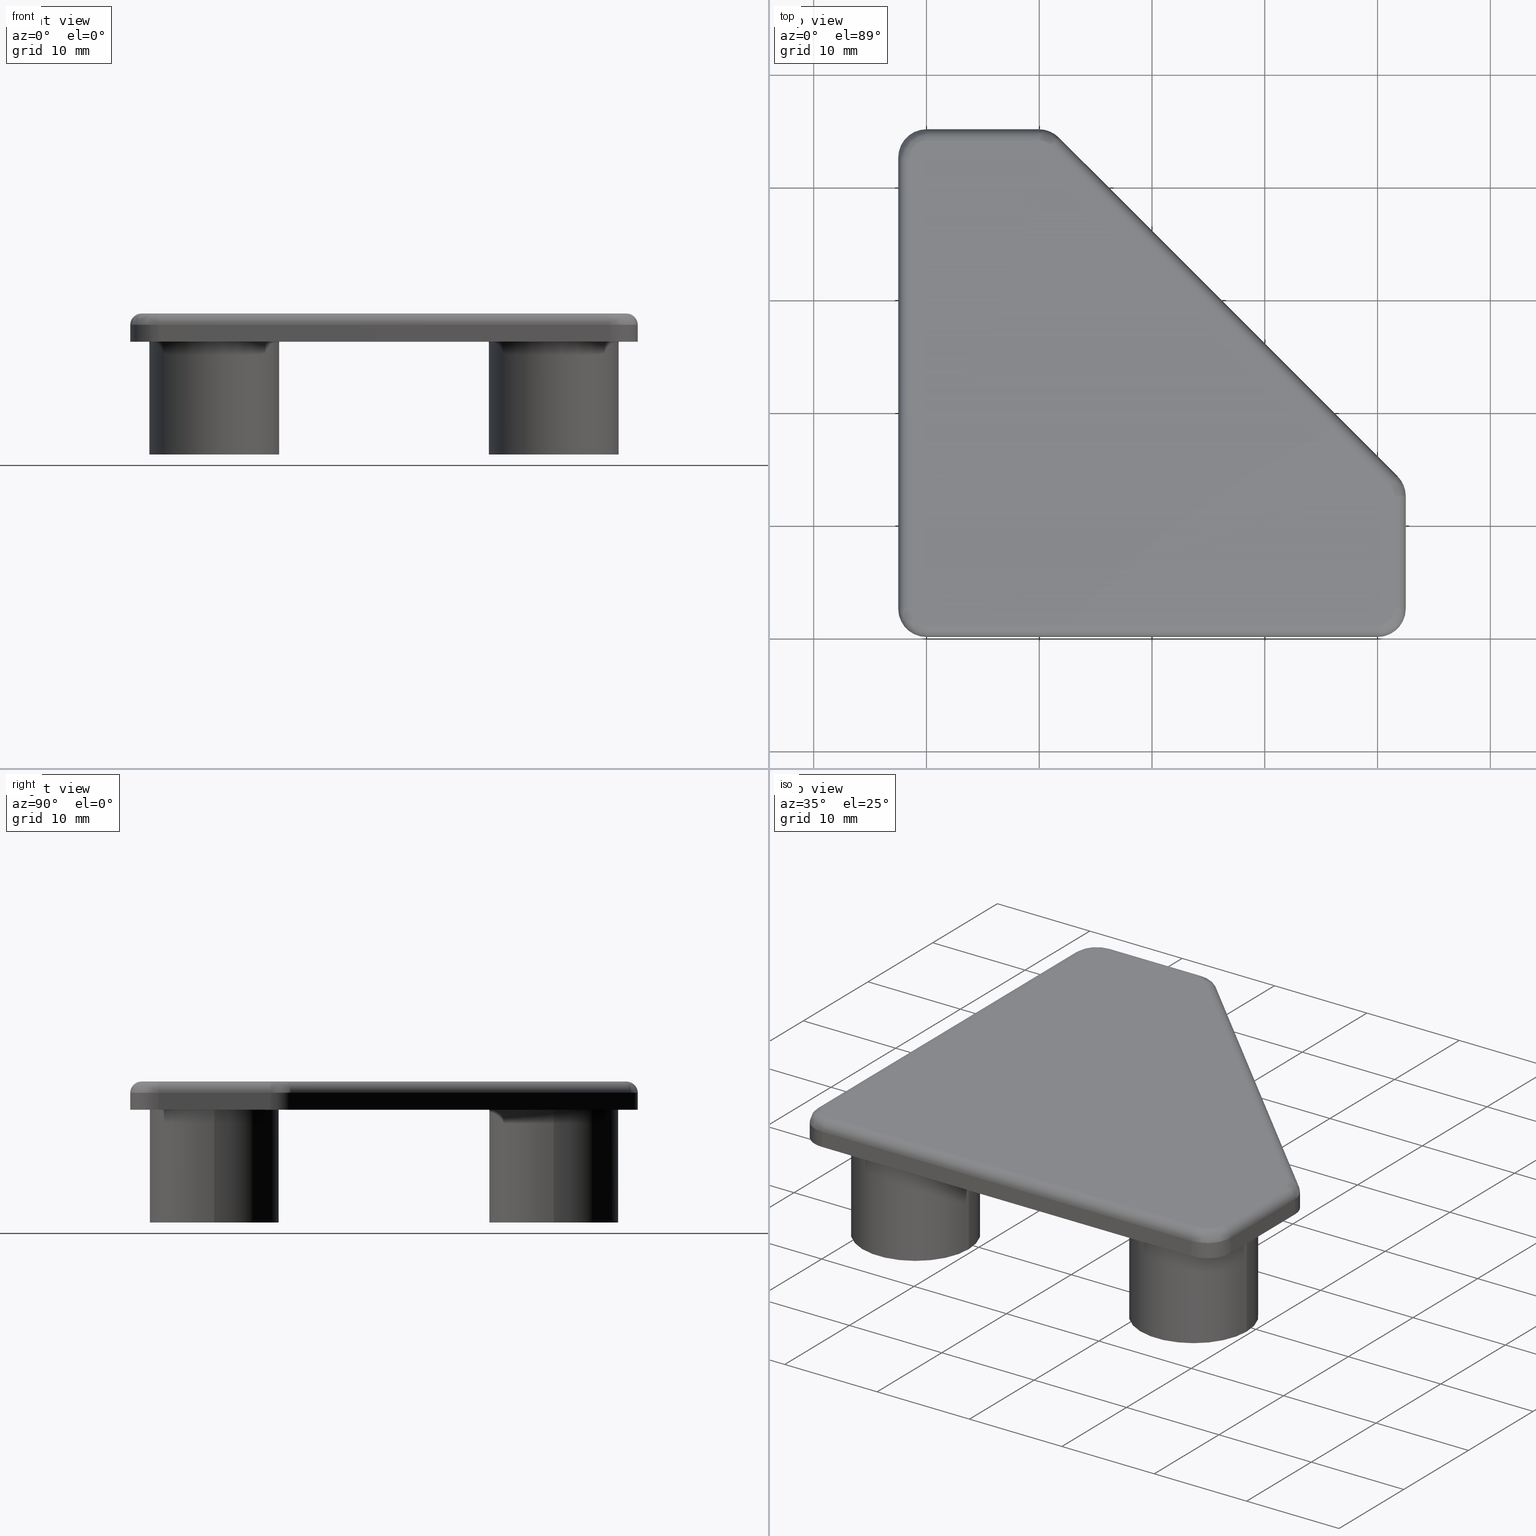
[diagram: canonical four-view strip — front | top / right | iso, engineering-drawing reading convention]
A machine part, canonical four-view strip (front | top / right | iso — engineering-drawing reading convention). The complete STEP part file that produces these views, byte-faithful:
ISO-10303-21;
HEADER;
/****************************************************************
 * Generated by software with PDE/Lib inside                    *
 * PDElib Version v4.4, created Mon 02/23/2004                  *
 * International Technegroup Inc. (www.iti-oh.com)              *
 ****************************************************************/
FILE_DESCRIPTION(('STEP AP203'),'2;1');
FILE_NAME('18.055.00.stp','2011-03-21T16:00:16',(''),(''),'2009.3.110','THINKDESIGN','');
FILE_SCHEMA(('CONFIG_CONTROL_DESIGN'));
ENDSEC;
DATA;
#2=CARTESIAN_POINT('',(-26.999976921299130,-4.499999774508175,0.0));
#3=DIRECTION('',(0.0,0.0,1.0));
#4=DIRECTION('',(1.0,0.0,0.0));
#5=AXIS2_PLACEMENT_3D('',#2,#3,#4);
#6=PLANE('',#5);
#7=CARTESIAN_POINT('',(-19.999976890545359,0.000000499999874,0.0));
#8=VERTEX_POINT('',#7);
#9=CARTESIAN_POINT('',(19.999976703044741,0.000000499999827,0.0));
#10=VERTEX_POINT('',#9);
#11=CARTESIAN_POINT('',(-19.999976890545359,0.000000499999874,0.0));
#12=DIRECTION('',(1.0,0.0,0.0));
#13=VECTOR('',#12,39.999953593590099);
#14=LINE('',#11,#13);
#15=EDGE_CURVE('',#8,#10,#14,.T.);
#16=ORIENTED_EDGE('',*,*,#15,.F.);
#17=CARTESIAN_POINT('',(-22.499976796785536,2.500000406240051,0.0));
#18=VERTEX_POINT('',#17);
#19=CARTESIAN_POINT('',(-19.999976890545359,2.500000406240051,0.0));
#20=DIRECTION('',(0.0,0.0,1.0));
#21=DIRECTION('',(1.224647E-016,-1.0,0.0));
#22=AXIS2_PLACEMENT_3D('',#19,#20,#21);
#23=CIRCLE('',#22,2.499999906240177);
#24=EDGE_CURVE('',#18,#8,#23,.T.);
#25=ORIENTED_EDGE('',*,*,#24,.F.);
#26=CARTESIAN_POINT('',(-22.499976796785500,42.499955999830036,0.0));
#27=VERTEX_POINT('',#26);
#28=CARTESIAN_POINT('',(-22.499976796785500,42.499955999830028,0.0));
#29=DIRECTION('',(0.0,-1.0,0.0));
#30=VECTOR('',#29,39.999955593589981);
#31=LINE('',#28,#30);
#32=EDGE_CURVE('',#27,#18,#31,.T.);
#33=ORIENTED_EDGE('',*,*,#32,.F.);
#34=CARTESIAN_POINT('',(-19.999976796795497,44.999955999820038,0.0));
#35=VERTEX_POINT('',#34);
#36=CARTESIAN_POINT('',(-19.999976796795497,42.499955999830036,0.0));
#37=DIRECTION('',(0.0,0.0,1.0));
#38=DIRECTION('',(1.0,0.0,0.0));
#39=AXIS2_PLACEMENT_3D('',#36,#37,#38);
#40=CIRCLE('',#39,2.499999999990003);
#41=EDGE_CURVE('',#35,#27,#40,.T.);
#42=ORIENTED_EDGE('',*,*,#41,.F.);
#43=CARTESIAN_POINT('',(-10.035555796835363,44.999955999820031,0.0));
#44=VERTEX_POINT('',#43);
#45=CARTESIAN_POINT('',(-10.035555796835363,44.999955999820031,0.0));
#46=DIRECTION('',(-1.0,0.0,0.0));
#47=VECTOR('',#46,9.964420999960135);
#48=LINE('',#45,#47);
#49=EDGE_CURVE('',#44,#35,#48,.T.);
#50=ORIENTED_EDGE('',*,*,#49,.F.);
#51=CARTESIAN_POINT('',(-8.267790390397970,44.267723593379706,0.0));
#52=VERTEX_POINT('',#51);
#53=CARTESIAN_POINT('',(-10.035555796835297,42.499958186942386,0.0));
#54=DIRECTION('',(0.0,0.0,1.0));
#55=DIRECTION('',(-2.629010E-014,1.0,0.0));
#56=AXIS2_PLACEMENT_3D('',#53,#54,#55);
#57=CIRCLE('',#56,2.499997812877652);
#58=EDGE_CURVE('',#52,#44,#57,.T.);
#59=ORIENTED_EDGE('',*,*,#58,.F.);
#60=CARTESIAN_POINT('',(21.767744203037456,14.232188999942801,0.0));
#61=VERTEX_POINT('',#60);
#62=CARTESIAN_POINT('',(21.767744203037459,14.232188999942803,0.0));
#63=DIRECTION('',(-0.707106781186530,0.707106781186565,0.0));
#64=VECTOR('',#63,42.476660375163696);
#65=LINE('',#62,#64);
#66=EDGE_CURVE('',#61,#52,#65,.T.);
#67=ORIENTED_EDGE('',*,*,#66,.F.);
#68=CARTESIAN_POINT('',(22.499977203035488,12.464422160532866,0.0));
#69=VERTEX_POINT('',#68);
#70=CARTESIAN_POINT('',(19.999977363626801,12.464422160532148,0.0));
#71=DIRECTION('',(0.0,0.0,1.0));
#72=DIRECTION('',(1.0,2.870593E-013,0.0));
#73=AXIS2_PLACEMENT_3D('',#70,#71,#72);
#74=CIRCLE('',#73,2.499999839408687);
#75=EDGE_CURVE('',#69,#61,#74,.T.);
#76=ORIENTED_EDGE('',*,*,#75,.F.);
#77=CARTESIAN_POINT('',(22.499977203034771,2.500000999989878,0.0));
#78=VERTEX_POINT('',#77);
#79=CARTESIAN_POINT('',(22.499977203034771,2.500000999989878,0.0));
#80=DIRECTION('',(0.0,1.0,0.0));
#81=VECTOR('',#80,9.964421160542988);
#82=LINE('',#79,#81);
#83=EDGE_CURVE('',#78,#69,#82,.T.);
#84=ORIENTED_EDGE('',*,*,#83,.F.);
#85=CARTESIAN_POINT('',(19.999976703044741,2.500000999989856,0.0));
#86=DIRECTION('',(0.0,0.0,1.0));
#87=DIRECTION('',(1.0,8.348875E-015,0.0));
#88=AXIS2_PLACEMENT_3D('',#85,#86,#87);
#89=CIRCLE('',#88,2.500000499990030);
#90=EDGE_CURVE('',#10,#78,#89,.T.);
#91=ORIENTED_EDGE('',*,*,#90,.F.);
#92=EDGE_LOOP('',(#16,#25,#33,#42,#50,#59,#67,#76,#84,#91));
#93=FACE_OUTER_BOUND('',#92,.T.);
#94=CARTESIAN_POINT('',(-20.799977796792124,7.449955999970369,0.0));
#95=VERTEX_POINT('',#94);
#96=CARTESIAN_POINT('',(-9.299977796838125,7.449955999970369,0.0));
#97=VERTEX_POINT('',#96);
#98=CARTESIAN_POINT('',(-15.049977796815124,7.449955999970369,0.0));
#99=DIRECTION('',(0.0,0.0,-1.0));
#100=DIRECTION('',(1.0,0.0,0.0));
#101=AXIS2_PLACEMENT_3D('',#98,#99,#100);
#102=CIRCLE('',#101,5.749999999977001);
#103=EDGE_CURVE('',#95,#97,#102,.T.);
#104=ORIENTED_EDGE('',*,*,#103,.F.);
#105=CARTESIAN_POINT('',(-15.049977796815124,7.449955999970369,0.0));
#106=DIRECTION('',(0.0,0.0,-1.0));
#107=DIRECTION('',(1.0,0.0,0.0));
#108=AXIS2_PLACEMENT_3D('',#105,#106,#107);
#109=CIRCLE('',#108,5.749999999977001);
#110=EDGE_CURVE('',#97,#95,#109,.T.);
#111=ORIENTED_EDGE('',*,*,#110,.F.);
#112=EDGE_LOOP('',(#104,#111));
#113=FACE_BOUND('',#112,.T.);
#114=CARTESIAN_POINT('',(9.300023203087616,7.449955999970369,0.0));
#115=VERTEX_POINT('',#114);
#116=CARTESIAN_POINT('',(20.800023203041615,7.449955999970369,0.0));
#117=VERTEX_POINT('',#116);
#118=CARTESIAN_POINT('',(15.050023203064615,7.449955999970369,0.0));
#119=DIRECTION('',(0.0,0.0,-1.0));
#120=DIRECTION('',(1.0,0.0,0.0));
#121=AXIS2_PLACEMENT_3D('',#118,#119,#120);
#122=CIRCLE('',#121,5.749999999977000);
#123=EDGE_CURVE('',#115,#117,#122,.T.);
#124=ORIENTED_EDGE('',*,*,#123,.F.);
#125=CARTESIAN_POINT('',(15.050023203064615,7.449955999970369,0.0));
#126=DIRECTION('',(0.0,0.0,-1.0));
#127=DIRECTION('',(1.0,0.0,0.0));
#128=AXIS2_PLACEMENT_3D('',#125,#126,#127);
#129=CIRCLE('',#128,5.749999999977000);
#130=EDGE_CURVE('',#117,#115,#129,.T.);
#131=ORIENTED_EDGE('',*,*,#130,.F.);
#132=EDGE_LOOP('',(#124,#131));
#133=FACE_BOUND('',#132,.T.);
#134=CARTESIAN_POINT('',(-20.799977796792124,37.549955999849772,0.0));
#135=VERTEX_POINT('',#134);
#136=CARTESIAN_POINT('',(-9.299977796838125,37.549955999849772,0.0));
#137=VERTEX_POINT('',#136);
#138=CARTESIAN_POINT('',(-15.049977796815124,37.549955999849772,0.0));
#139=DIRECTION('',(0.0,0.0,-1.0));
#140=DIRECTION('',(1.0,0.0,0.0));
#141=AXIS2_PLACEMENT_3D('',#138,#139,#140);
#142=CIRCLE('',#141,5.749999999977001);
#143=EDGE_CURVE('',#135,#137,#142,.T.);
#144=ORIENTED_EDGE('',*,*,#143,.F.);
#145=CARTESIAN_POINT('',(-15.049977796815124,37.549955999849772,0.0));
#146=DIRECTION('',(0.0,0.0,-1.0));
#147=DIRECTION('',(1.0,0.0,0.0));
#148=AXIS2_PLACEMENT_3D('',#145,#146,#147);
#149=CIRCLE('',#148,5.749999999977001);
#150=EDGE_CURVE('',#137,#135,#149,.T.);
#151=ORIENTED_EDGE('',*,*,#150,.F.);
#152=EDGE_LOOP('',(#144,#151));
#153=FACE_BOUND('',#152,.T.);
#154=ADVANCED_FACE('',(#93,#113,#133,#153),#6,.F.);
#155=CARTESIAN_POINT('',(-26.999976921299130,-4.499999774508175,0.0));
#156=DIRECTION('',(0.0,0.0,1.0));
#157=DIRECTION('',(1.0,0.0,0.0));
#158=AXIS2_PLACEMENT_3D('',#155,#156,#157);
#159=PLANE('',#158);
#160=CARTESIAN_POINT('',(-20.049977796795126,37.549955999849772,0.0));
#161=VERTEX_POINT('',#160);
#162=CARTESIAN_POINT('',(-10.049977796835122,37.549955999849772,0.0));
#163=VERTEX_POINT('',#162);
#164=CARTESIAN_POINT('',(-15.049977796815124,37.549955999849772,0.0));
#165=DIRECTION('',(0.0,0.0,1.0));
#166=DIRECTION('',(1.0,0.0,0.0));
#167=AXIS2_PLACEMENT_3D('',#164,#165,#166);
#168=CIRCLE('',#167,4.999999999980001);
#169=EDGE_CURVE('',#161,#163,#168,.T.);
#170=ORIENTED_EDGE('',*,*,#169,.F.);
#171=CARTESIAN_POINT('',(-15.049977796815124,37.549955999849772,0.0));
#172=DIRECTION('',(0.0,0.0,1.0));
#173=DIRECTION('',(1.0,0.0,0.0));
#174=AXIS2_PLACEMENT_3D('',#171,#172,#173);
#175=CIRCLE('',#174,4.999999999980001);
#176=EDGE_CURVE('',#163,#161,#175,.T.);
#177=ORIENTED_EDGE('',*,*,#176,.F.);
#178=EDGE_LOOP('',(#170,#177));
#179=FACE_OUTER_BOUND('',#178,.T.);
#180=ADVANCED_FACE('',(#179),#159,.F.);
#181=CARTESIAN_POINT('',(-26.999976921299130,-4.499999774508175,0.0));
#182=DIRECTION('',(0.0,0.0,1.0));
#183=DIRECTION('',(1.0,0.0,0.0));
#184=AXIS2_PLACEMENT_3D('',#181,#182,#183);
#185=PLANE('',#184);
#186=CARTESIAN_POINT('',(10.050023203084613,7.449955999970369,0.0));
#187=VERTEX_POINT('',#186);
#188=CARTESIAN_POINT('',(20.050023203044621,7.449955999970370,0.0));
#189=VERTEX_POINT('',#188);
#190=CARTESIAN_POINT('',(15.050023203064615,7.449955999970369,0.0));
#191=DIRECTION('',(0.0,0.0,1.0));
#192=DIRECTION('',(1.0,0.0,0.0));
#193=AXIS2_PLACEMENT_3D('',#190,#191,#192);
#194=CIRCLE('',#193,4.999999999980002);
#195=EDGE_CURVE('',#187,#189,#194,.T.);
#196=ORIENTED_EDGE('',*,*,#195,.F.);
#197=CARTESIAN_POINT('',(15.050023203064615,7.449955999970369,0.0));
#198=DIRECTION('',(0.0,0.0,1.0));
#199=DIRECTION('',(1.0,0.0,0.0));
#200=AXIS2_PLACEMENT_3D('',#197,#198,#199);
#201=CIRCLE('',#200,4.999999999980002);
#202=EDGE_CURVE('',#189,#187,#201,.T.);
#203=ORIENTED_EDGE('',*,*,#202,.F.);
#204=EDGE_LOOP('',(#196,#203));
#205=FACE_OUTER_BOUND('',#204,.T.);
#206=ADVANCED_FACE('',(#205),#185,.F.);
#207=CARTESIAN_POINT('',(-26.999976921299130,-4.499999774508175,0.0));
#208=DIRECTION('',(0.0,0.0,1.0));
#209=DIRECTION('',(1.0,0.0,0.0));
#210=AXIS2_PLACEMENT_3D('',#207,#208,#209);
#211=PLANE('',#210);
#212=CARTESIAN_POINT('',(-20.049977796795126,7.449955999970369,0.0));
#213=VERTEX_POINT('',#212);
#214=CARTESIAN_POINT('',(-10.049977796835122,7.449955999970370,0.0));
#215=VERTEX_POINT('',#214);
#216=CARTESIAN_POINT('',(-15.049977796815124,7.449955999970369,0.0));
#217=DIRECTION('',(0.0,0.0,1.0));
#218=DIRECTION('',(1.0,0.0,0.0));
#219=AXIS2_PLACEMENT_3D('',#216,#217,#218);
#220=CIRCLE('',#219,4.999999999980001);
#221=EDGE_CURVE('',#213,#215,#220,.T.);
#222=ORIENTED_EDGE('',*,*,#221,.F.);
#223=CARTESIAN_POINT('',(-15.049977796815124,7.449955999970369,0.0));
#224=DIRECTION('',(0.0,0.0,1.0));
#225=DIRECTION('',(1.0,0.0,0.0));
#226=AXIS2_PLACEMENT_3D('',#223,#224,#225);
#227=CIRCLE('',#226,4.999999999980001);
#228=EDGE_CURVE('',#215,#213,#227,.T.);
#229=ORIENTED_EDGE('',*,*,#228,.F.);
#230=EDGE_LOOP('',(#222,#229));
#231=FACE_OUTER_BOUND('',#230,.T.);
#232=ADVANCED_FACE('',(#231),#211,.F.);
#233=CARTESIAN_POINT('',(-26.999976921299130,-4.499999774508175,2.499999999989996));
#234=DIRECTION('',(0.0,0.0,1.0));
#235=DIRECTION('',(1.0,0.0,0.0));
#236=AXIS2_PLACEMENT_3D('',#233,#234,#235);
#237=PLANE('',#236);
#238=CARTESIAN_POINT('',(21.499977203035488,12.464422160532582,2.499999999989996));
#239=VERTEX_POINT('',#238);
#240=CARTESIAN_POINT('',(21.060637421851421,13.525082218756763,2.499999999989996));
#241=VERTEX_POINT('',#240);
#242=CARTESIAN_POINT('',(19.999977363626801,12.464422160532150,2.499999999989996));
#243=DIRECTION('',(0.0,0.0,1.0));
#244=DIRECTION('',(1.0,2.870593E-013,0.0));
#245=AXIS2_PLACEMENT_3D('',#242,#243,#244);
#246=CIRCLE('',#245,1.499999839408687);
#247=EDGE_CURVE('',#239,#241,#246,.T.);
#248=ORIENTED_EDGE('',*,*,#247,.T.);
#249=CARTESIAN_POINT('',(-8.974897171584519,43.560616812193160,2.499999999989996));
#250=VERTEX_POINT('',#249);
#251=CARTESIAN_POINT('',(21.060637421850888,13.525082218756269,2.499999999989996));
#252=DIRECTION('',(-0.707106781186530,0.707106781186565,0.0));
#253=VECTOR('',#252,42.476660375163696);
#254=LINE('',#251,#253);
#255=EDGE_CURVE('',#241,#250,#254,.T.);
#256=ORIENTED_EDGE('',*,*,#255,.T.);
#257=CARTESIAN_POINT('',(-10.035555796835363,43.999955999820031,2.499999999989996));
#258=VERTEX_POINT('',#257);
#259=CARTESIAN_POINT('',(-10.035555796835299,42.499958186942386,2.499999999989996));
#260=DIRECTION('',(0.0,0.0,1.0));
#261=DIRECTION('',(-2.629010E-014,1.0,0.0));
#262=AXIS2_PLACEMENT_3D('',#259,#260,#261);
#263=CIRCLE('',#262,1.499997812877652);
#264=EDGE_CURVE('',#250,#258,#263,.T.);
#265=ORIENTED_EDGE('',*,*,#264,.T.);
#266=CARTESIAN_POINT('',(-19.999976796795497,43.999955999820038,2.499999999989996));
#267=VERTEX_POINT('',#266);
#268=CARTESIAN_POINT('',(-10.035555796835363,43.999955999820031,2.499999999989996));
#269=DIRECTION('',(-1.0,0.0,0.0));
#270=VECTOR('',#269,9.964420999960138);
#271=LINE('',#268,#270);
#272=EDGE_CURVE('',#258,#267,#271,.T.);
#273=ORIENTED_EDGE('',*,*,#272,.T.);
#274=CARTESIAN_POINT('',(-21.499976796785500,42.499955999830036,2.499999999989996));
#275=VERTEX_POINT('',#274);
#276=CARTESIAN_POINT('',(-19.999976796795497,42.499955999830036,2.499999999989996));
#277=DIRECTION('',(0.0,0.0,1.0));
#278=DIRECTION('',(1.0,0.0,0.0));
#279=AXIS2_PLACEMENT_3D('',#276,#277,#278);
#280=CIRCLE('',#279,1.499999999990003);
#281=EDGE_CURVE('',#267,#275,#280,.T.);
#282=ORIENTED_EDGE('',*,*,#281,.T.);
#283=CARTESIAN_POINT('',(-21.499976796785536,2.500000406240051,2.499999999989996));
#284=VERTEX_POINT('',#283);
#285=CARTESIAN_POINT('',(-21.499976796785500,42.499955999830036,2.499999999989996));
#286=DIRECTION('',(0.0,-1.0,0.0));
#287=VECTOR('',#286,39.999955593589981);
#288=LINE('',#285,#287);
#289=EDGE_CURVE('',#275,#284,#288,.T.);
#290=ORIENTED_EDGE('',*,*,#289,.T.);
#291=CARTESIAN_POINT('',(-19.999976890545359,1.000000499999873,2.499999999989996));
#292=VERTEX_POINT('',#291);
#293=CARTESIAN_POINT('',(-19.999976890545362,2.500000406240051,2.499999999989996));
#294=DIRECTION('',(0.0,0.0,1.0));
#295=DIRECTION('',(1.224647E-016,-1.0,0.0));
#296=AXIS2_PLACEMENT_3D('',#293,#294,#295);
#297=CIRCLE('',#296,1.499999906240177);
#298=EDGE_CURVE('',#284,#292,#297,.T.);
#299=ORIENTED_EDGE('',*,*,#298,.T.);
#300=CARTESIAN_POINT('',(19.999976703044741,1.000000499999827,2.499999999989996));
#301=VERTEX_POINT('',#300);
#302=CARTESIAN_POINT('',(-19.999976890545359,1.000000499999873,2.499999999989996));
#303=DIRECTION('',(1.0,0.0,0.0));
#304=VECTOR('',#303,39.999953593590099);
#305=LINE('',#302,#304);
#306=EDGE_CURVE('',#292,#301,#305,.T.);
#307=ORIENTED_EDGE('',*,*,#306,.T.);
#308=CARTESIAN_POINT('',(21.499977203034771,2.500000999989950,2.499999999989996));
#309=VERTEX_POINT('',#308);
#310=CARTESIAN_POINT('',(19.999976703044741,2.500000999989857,2.499999999989996));
#311=DIRECTION('',(0.0,0.0,1.0));
#312=DIRECTION('',(1.0,8.348875E-015,0.0));
#313=AXIS2_PLACEMENT_3D('',#310,#311,#312);
#314=CIRCLE('',#313,1.500000499990030);
#315=EDGE_CURVE('',#301,#309,#314,.T.);
#316=ORIENTED_EDGE('',*,*,#315,.T.);
#317=CARTESIAN_POINT('',(21.499977203034771,2.500000999989950,2.499999999989996));
#318=DIRECTION('',(0.0,1.0,0.0));
#319=VECTOR('',#318,9.964421160542990);
#320=LINE('',#317,#319);
#321=EDGE_CURVE('',#309,#239,#320,.T.);
#322=ORIENTED_EDGE('',*,*,#321,.T.);
#323=EDGE_LOOP('',(#248,#256,#265,#273,#282,#290,#299,#307,#316,#322));
#324=FACE_OUTER_BOUND('',#323,.T.);
#325=ADVANCED_FACE('',(#324),#237,.T.);
#326=CARTESIAN_POINT('',(21.767744203037456,14.232188999942801,0.0));
#327=DIRECTION('',(0.707106781186565,0.707106781186530,0.0));
#328=DIRECTION('',(-0.707106781186530,0.707106781186565,0.0));
#329=AXIS2_PLACEMENT_3D('',#326,#327,#328);
#330=PLANE('',#329);
#331=ORIENTED_EDGE('',*,*,#66,.T.);
#332=CARTESIAN_POINT('',(-8.267790390397970,44.267723593379706,1.499999999989996));
#333=VERTEX_POINT('',#332);
#334=CARTESIAN_POINT('',(-8.267790390397970,44.267723593379706,0.0));
#335=DIRECTION('',(0.0,0.0,1.0));
#336=VECTOR('',#335,1.499999999989996);
#337=LINE('',#334,#336);
#338=EDGE_CURVE('',#52,#333,#337,.T.);
#339=ORIENTED_EDGE('',*,*,#338,.T.);
#340=CARTESIAN_POINT('',(21.767744203037967,14.232188999943309,1.499999999989996));
#341=VERTEX_POINT('',#340);
#342=CARTESIAN_POINT('',(21.767744203037456,14.232188999942801,1.499999999989996));
#343=DIRECTION('',(-0.707106781186530,0.707106781186565,0.0));
#344=VECTOR('',#343,42.476660375163696);
#345=LINE('',#342,#344);
#346=EDGE_CURVE('',#341,#333,#345,.T.);
#347=ORIENTED_EDGE('',*,*,#346,.F.);
#348=CARTESIAN_POINT('',(21.767744203037456,14.232188999942801,0.0));
#349=DIRECTION('',(0.0,0.0,1.0));
#350=VECTOR('',#349,1.499999999989996);
#351=LINE('',#348,#350);
#352=EDGE_CURVE('',#61,#341,#351,.T.);
#353=ORIENTED_EDGE('',*,*,#352,.F.);
#354=EDGE_LOOP('',(#331,#339,#347,#353));
#355=FACE_OUTER_BOUND('',#354,.T.);
#356=ADVANCED_FACE('',(#355),#330,.T.);
#357=CARTESIAN_POINT('',(-10.035555796835297,42.499958186942386,0.0));
#358=DIRECTION('',(0.0,0.0,1.0));
#359=DIRECTION('',(0.707106781186548,0.707106781186547,0.0));
#360=AXIS2_PLACEMENT_3D('',#357,#358,#359);
#361=CYLINDRICAL_SURFACE('',#360,2.499997812877652);
#362=ORIENTED_EDGE('',*,*,#58,.T.);
#363=CARTESIAN_POINT('',(-10.035555796835363,44.999955999820031,1.499999999989996));
#364=VERTEX_POINT('',#363);
#365=CARTESIAN_POINT('',(-10.035555796835363,44.999955999820031,0.0));
#366=DIRECTION('',(0.0,0.0,1.0));
#367=VECTOR('',#366,1.499999999989996);
#368=LINE('',#365,#367);
#369=EDGE_CURVE('',#44,#364,#368,.T.);
#370=ORIENTED_EDGE('',*,*,#369,.T.);
#371=CARTESIAN_POINT('',(-10.035555796835297,42.499958186942386,1.499999999989996));
#372=DIRECTION('',(0.0,0.0,1.0));
#373=DIRECTION('',(-2.629010E-014,1.0,0.0));
#374=AXIS2_PLACEMENT_3D('',#371,#372,#373);
#375=CIRCLE('',#374,2.499997812877652);
#376=EDGE_CURVE('',#333,#364,#375,.T.);
#377=ORIENTED_EDGE('',*,*,#376,.F.);
#378=ORIENTED_EDGE('',*,*,#338,.F.);
#379=EDGE_LOOP('',(#362,#370,#377,#378));
#380=FACE_OUTER_BOUND('',#379,.T.);
#381=ADVANCED_FACE('',(#380),#361,.T.);
#382=CARTESIAN_POINT('',(-10.035555796835363,44.999955999820031,0.0));
#383=DIRECTION('',(0.0,1.0,0.0));
#384=DIRECTION('',(-1.0,0.0,0.0));
#385=AXIS2_PLACEMENT_3D('',#382,#383,#384);
#386=PLANE('',#385);
#387=ORIENTED_EDGE('',*,*,#49,.T.);
#388=CARTESIAN_POINT('',(-19.999976796795497,44.999955999820038,1.499999999989996));
#389=VERTEX_POINT('',#388);
#390=CARTESIAN_POINT('',(-19.999976796795497,44.999955999820038,0.0));
#391=DIRECTION('',(0.0,0.0,1.0));
#392=VECTOR('',#391,1.499999999989996);
#393=LINE('',#390,#392);
#394=EDGE_CURVE('',#35,#389,#393,.T.);
#395=ORIENTED_EDGE('',*,*,#394,.T.);
#396=CARTESIAN_POINT('',(-10.035555796835363,44.999955999820031,1.499999999989996));
#397=DIRECTION('',(-1.0,0.0,0.0));
#398=VECTOR('',#397,9.964420999960135);
#399=LINE('',#396,#398);
#400=EDGE_CURVE('',#364,#389,#399,.T.);
#401=ORIENTED_EDGE('',*,*,#400,.F.);
#402=ORIENTED_EDGE('',*,*,#369,.F.);
#403=EDGE_LOOP('',(#387,#395,#401,#402));
#404=FACE_OUTER_BOUND('',#403,.T.);
#405=ADVANCED_FACE('',(#404),#386,.T.);
#406=CARTESIAN_POINT('',(-19.999976796795497,42.499955999830036,0.0));
#407=DIRECTION('',(0.0,0.0,1.0));
#408=DIRECTION('',(1.0,0.0,0.0));
#409=AXIS2_PLACEMENT_3D('',#406,#407,#408);
#410=CYLINDRICAL_SURFACE('',#409,2.499999999990003);
#411=ORIENTED_EDGE('',*,*,#41,.T.);
#412=CARTESIAN_POINT('',(-22.499976796785500,42.499955999830036,1.499999999989996));
#413=VERTEX_POINT('',#412);
#414=CARTESIAN_POINT('',(-22.499976796785500,42.499955999830036,0.0));
#415=DIRECTION('',(0.0,0.0,1.0));
#416=VECTOR('',#415,1.499999999989996);
#417=LINE('',#414,#416);
#418=EDGE_CURVE('',#27,#413,#417,.T.);
#419=ORIENTED_EDGE('',*,*,#418,.T.);
#420=CARTESIAN_POINT('',(-19.999976796795497,42.499955999830036,1.499999999989996));
#421=DIRECTION('',(0.0,0.0,1.0));
#422=DIRECTION('',(1.0,0.0,0.0));
#423=AXIS2_PLACEMENT_3D('',#420,#421,#422);
#424=CIRCLE('',#423,2.499999999990003);
#425=EDGE_CURVE('',#389,#413,#424,.T.);
#426=ORIENTED_EDGE('',*,*,#425,.F.);
#427=ORIENTED_EDGE('',*,*,#394,.F.);
#428=EDGE_LOOP('',(#411,#419,#426,#427));
#429=FACE_OUTER_BOUND('',#428,.T.);
#430=ADVANCED_FACE('',(#429),#410,.T.);
#431=CARTESIAN_POINT('',(-22.499976796785500,42.499955999830036,0.0));
#432=DIRECTION('',(-1.0,0.0,0.0));
#433=DIRECTION('',(0.0,-1.0,0.0));
#434=AXIS2_PLACEMENT_3D('',#431,#432,#433);
#435=PLANE('',#434);
#436=ORIENTED_EDGE('',*,*,#32,.T.);
#437=CARTESIAN_POINT('',(-22.499976796785536,2.500000406240051,1.499999999989996));
#438=VERTEX_POINT('',#437);
#439=CARTESIAN_POINT('',(-22.499976796785536,2.500000406240051,0.0));
#440=DIRECTION('',(0.0,0.0,1.0));
#441=VECTOR('',#440,1.499999999989996);
#442=LINE('',#439,#441);
#443=EDGE_CURVE('',#18,#438,#442,.T.);
#444=ORIENTED_EDGE('',*,*,#443,.T.);
#445=CARTESIAN_POINT('',(-22.499976796785500,42.499955999830036,1.499999999989996));
#446=DIRECTION('',(0.0,-1.0,0.0));
#447=VECTOR('',#446,39.999955593589981);
#448=LINE('',#445,#447);
#449=EDGE_CURVE('',#413,#438,#448,.T.);
#450=ORIENTED_EDGE('',*,*,#449,.F.);
#451=ORIENTED_EDGE('',*,*,#418,.F.);
#452=EDGE_LOOP('',(#436,#444,#450,#451));
#453=FACE_OUTER_BOUND('',#452,.T.);
#454=ADVANCED_FACE('',(#453),#435,.T.);
#455=CARTESIAN_POINT('',(-19.999976890545359,2.500000406240051,0.0));
#456=DIRECTION('',(0.0,0.0,1.0));
#457=DIRECTION('',(-1.0,3.834759E-017,0.0));
#458=AXIS2_PLACEMENT_3D('',#455,#456,#457);
#459=CYLINDRICAL_SURFACE('',#458,2.499999906240177);
#460=ORIENTED_EDGE('',*,*,#24,.T.);
#461=CARTESIAN_POINT('',(-19.999976890545359,0.000000499999874,1.499999999989996));
#462=VERTEX_POINT('',#461);
#463=CARTESIAN_POINT('',(-19.999976890545359,0.000000499999874,0.0));
#464=DIRECTION('',(0.0,0.0,1.0));
#465=VECTOR('',#464,1.499999999989996);
#466=LINE('',#463,#465);
#467=EDGE_CURVE('',#8,#462,#466,.T.);
#468=ORIENTED_EDGE('',*,*,#467,.T.);
#469=CARTESIAN_POINT('',(-19.999976890545359,2.500000406240051,1.499999999989996));
#470=DIRECTION('',(0.0,0.0,1.0));
#471=DIRECTION('',(1.224647E-016,-1.0,0.0));
#472=AXIS2_PLACEMENT_3D('',#469,#470,#471);
#473=CIRCLE('',#472,2.499999906240177);
#474=EDGE_CURVE('',#438,#462,#473,.T.);
#475=ORIENTED_EDGE('',*,*,#474,.F.);
#476=ORIENTED_EDGE('',*,*,#443,.F.);
#477=EDGE_LOOP('',(#460,#468,#475,#476));
#478=FACE_OUTER_BOUND('',#477,.T.);
#479=ADVANCED_FACE('',(#478),#459,.T.);
#480=CARTESIAN_POINT('',(-19.999976890545359,0.000000499999874,0.0));
#481=DIRECTION('',(0.0,-1.0,0.0));
#482=DIRECTION('',(1.0,0.0,0.0));
#483=AXIS2_PLACEMENT_3D('',#480,#481,#482);
#484=PLANE('',#483);
#485=CARTESIAN_POINT('',(19.999976703044741,0.000000499999827,1.499999999989996));
#486=VERTEX_POINT('',#485);
#487=CARTESIAN_POINT('',(19.999976703044741,0.000000499999827,0.0));
#488=DIRECTION('',(0.0,0.0,1.0));
#489=VECTOR('',#488,1.499999999989996);
#490=LINE('',#487,#489);
#491=EDGE_CURVE('',#10,#486,#490,.T.);
#492=ORIENTED_EDGE('',*,*,#491,.T.);
#493=CARTESIAN_POINT('',(-19.999976890545359,0.000000499999874,1.499999999989996));
#494=DIRECTION('',(1.0,0.0,0.0));
#495=VECTOR('',#494,39.999953593590099);
#496=LINE('',#493,#495);
#497=EDGE_CURVE('',#462,#486,#496,.T.);
#498=ORIENTED_EDGE('',*,*,#497,.F.);
#499=ORIENTED_EDGE('',*,*,#467,.F.);
#500=ORIENTED_EDGE('',*,*,#15,.T.);
#501=EDGE_LOOP('',(#492,#498,#499,#500));
#502=FACE_OUTER_BOUND('',#501,.T.);
#503=ADVANCED_FACE('',(#502),#484,.T.);
#504=CARTESIAN_POINT('',(19.999976703044741,2.500000999989856,0.0));
#505=DIRECTION('',(0.0,0.0,1.0));
#506=DIRECTION('',(-2.758717E-017,-1.0,0.0));
#507=AXIS2_PLACEMENT_3D('',#504,#505,#506);
#508=CYLINDRICAL_SURFACE('',#507,2.500000499990030);
#509=ORIENTED_EDGE('',*,*,#90,.T.);
#510=CARTESIAN_POINT('',(22.499977203034771,2.500000999989878,1.499999999989996));
#511=VERTEX_POINT('',#510);
#512=CARTESIAN_POINT('',(22.499977203034771,2.500000999989878,0.0));
#513=DIRECTION('',(0.0,0.0,1.0));
#514=VECTOR('',#513,1.499999999989996);
#515=LINE('',#512,#514);
#516=EDGE_CURVE('',#78,#511,#515,.T.);
#517=ORIENTED_EDGE('',*,*,#516,.T.);
#518=CARTESIAN_POINT('',(19.999976703044741,2.500000999989856,1.499999999989996));
#519=DIRECTION('',(0.0,0.0,1.0));
#520=DIRECTION('',(1.0,8.348875E-015,0.0));
#521=AXIS2_PLACEMENT_3D('',#518,#519,#520);
#522=CIRCLE('',#521,2.500000499990030);
#523=EDGE_CURVE('',#486,#511,#522,.T.);
#524=ORIENTED_EDGE('',*,*,#523,.F.);
#525=ORIENTED_EDGE('',*,*,#491,.F.);
#526=EDGE_LOOP('',(#509,#517,#524,#525));
#527=FACE_OUTER_BOUND('',#526,.T.);
#528=ADVANCED_FACE('',(#527),#508,.T.);
#529=CARTESIAN_POINT('',(22.499977203034771,2.500000999989878,0.0));
#530=DIRECTION('',(1.0,0.0,0.0));
#531=DIRECTION('',(0.0,1.0,0.0));
#532=AXIS2_PLACEMENT_3D('',#529,#530,#531);
#533=PLANE('',#532);
#534=ORIENTED_EDGE('',*,*,#83,.T.);
#535=CARTESIAN_POINT('',(22.499977203035488,12.464422160532866,1.499999999989996));
#536=VERTEX_POINT('',#535);
#537=CARTESIAN_POINT('',(22.499977203035488,12.464422160532866,0.0));
#538=DIRECTION('',(0.0,0.0,1.0));
#539=VECTOR('',#538,1.499999999989996);
#540=LINE('',#537,#539);
#541=EDGE_CURVE('',#69,#536,#540,.T.);
#542=ORIENTED_EDGE('',*,*,#541,.T.);
#543=CARTESIAN_POINT('',(22.499977203034771,2.500000999989878,1.499999999989996));
#544=DIRECTION('',(0.0,1.0,0.0));
#545=VECTOR('',#544,9.964421160542988);
#546=LINE('',#543,#545);
#547=EDGE_CURVE('',#511,#536,#546,.T.);
#548=ORIENTED_EDGE('',*,*,#547,.F.);
#549=ORIENTED_EDGE('',*,*,#516,.F.);
#550=EDGE_LOOP('',(#534,#542,#548,#549));
#551=FACE_OUTER_BOUND('',#550,.T.);
#552=ADVANCED_FACE('',(#551),#533,.T.);
#553=CARTESIAN_POINT('',(19.999977363626801,12.464422160532148,0.0));
#554=DIRECTION('',(0.0,0.0,1.0));
#555=DIRECTION('',(1.0,2.870593E-013,0.0));
#556=AXIS2_PLACEMENT_3D('',#553,#554,#555);
#557=CYLINDRICAL_SURFACE('',#556,2.499999839408687);
#558=ORIENTED_EDGE('',*,*,#75,.T.);
#559=ORIENTED_EDGE('',*,*,#352,.T.);
#560=CARTESIAN_POINT('',(19.999977363626801,12.464422160532148,1.499999999989996));
#561=DIRECTION('',(0.0,0.0,1.0));
#562=DIRECTION('',(1.0,2.870593E-013,0.0));
#563=AXIS2_PLACEMENT_3D('',#560,#561,#562);
#564=CIRCLE('',#563,2.499999839408687);
#565=EDGE_CURVE('',#536,#341,#564,.T.);
#566=ORIENTED_EDGE('',*,*,#565,.F.);
#567=ORIENTED_EDGE('',*,*,#541,.F.);
#568=EDGE_LOOP('',(#558,#559,#566,#567));
#569=FACE_OUTER_BOUND('',#568,.T.);
#570=ADVANCED_FACE('',(#569),#557,.T.);
#571=CARTESIAN_POINT('',(22.499977203035488,12.464422160532866,1.499999999989996));
#572=CARTESIAN_POINT('',(22.499977203035488,12.464422160532866,1.630060214667415));
#573=CARTESIAN_POINT('',(22.447938426919713,12.464422160532854,1.893027817333271));
#574=CARTESIAN_POINT('',(22.225390114508425,12.464422160532786,2.225412911462942));
#575=CARTESIAN_POINT('',(21.893005020378766,12.464422160532692,2.447961223874217));
#576=CARTESIAN_POINT('',(21.630037417712909,12.464422160532619,2.499999999989996));
#577=CARTESIAN_POINT('',(21.499977203035488,12.464422160532582,2.499999999989996));
#578=CARTESIAN_POINT('',(22.499977203035446,12.627784050588273,1.499999999989996));
#579=CARTESIAN_POINT('',(22.499977203035446,12.627784050588273,1.630060214667414));
#580=CARTESIAN_POINT('',(22.447938426919663,12.624383589240848,1.893027817333271));
#581=CARTESIAN_POINT('',(22.225390114508386,12.609841223128972,2.225412911462942));
#582=CARTESIAN_POINT('',(21.893005020378734,12.588121598852378,2.447961223874217));
#583=CARTESIAN_POINT('',(21.630037417712867,12.570938043910559,2.499999999989996));
#584=CARTESIAN_POINT('',(21.499977203035463,12.562439290368305,2.499999999989996));
#585=CARTESIAN_POINT('',(22.467752836423848,12.955406654246167,1.499999999989996));
#586=CARTESIAN_POINT('',(22.467752836423848,12.955406654246167,1.630060214667414));
#587=CARTESIAN_POINT('',(22.416384826991006,12.945186560731777,1.893027817333270));
#588=CARTESIAN_POINT('',(22.196705106127155,12.901479449725725,2.225412911462941));
#589=CARTESIAN_POINT('',(21.868604371924505,12.836201074668736,2.447961223874215));
#590=CARTESIAN_POINT('',(21.609026355250499,12.784555865247992,2.499999999989995));
#591=CARTESIAN_POINT('',(21.480642583896504,12.759012844144905,2.499999999989996));
#592=CARTESIAN_POINT('',(22.324541710738394,13.427288239715120,1.499999999989995));
#593=CARTESIAN_POINT('',(22.324541710738394,13.427288239715120,1.630060214667414));
#594=CARTESIAN_POINT('',(22.276154714179757,13.407245689498037,1.893027817333270));
#595=CARTESIAN_POINT('',(22.069223551870788,13.321531995591970,2.225412911462940));
#596=CARTESIAN_POINT('',(21.760163316287759,13.193515054423219,2.447961223874215));
#597=CARTESIAN_POINT('',(21.515649255140040,13.092234014104871,2.499999999989995));
#598=CARTESIAN_POINT('',(21.394715912164983,13.042141783301464,2.499999999989996));
#599=CARTESIAN_POINT('',(22.092136599849670,13.862224466830764,1.499999999989996));
#600=CARTESIAN_POINT('',(22.092136599849670,13.862224466830764,1.630060214667415));
#601=CARTESIAN_POINT('',(22.048587234615276,13.833128496453089,1.893027817333272));
#602=CARTESIAN_POINT('',(21.862344619724844,13.708697070719523,2.225412911462944));
#603=CARTESIAN_POINT('',(21.584183583990278,13.522853598320083,2.447961223874218));
#604=CARTESIAN_POINT('',(21.364115530355967,13.375822900280081,2.499999999989996));
#605=CARTESIAN_POINT('',(21.255272851603301,13.303103508395331,2.499999999989996));
#606=CARTESIAN_POINT('',(21.883258503283592,14.116674699697677,1.499999999989996));
#607=CARTESIAN_POINT('',(21.883258503283592,14.116674699697679,1.630060214667414));
#608=CARTESIAN_POINT('',(21.844057042529563,14.082282217499486,1.893027817333271));
#609=CARTESIAN_POINT('',(21.676408615989768,13.935199802344007,2.225412911462942));
#610=CARTESIAN_POINT('',(21.426018768354602,13.715526141930319,2.447961223874217));
#611=CARTESIAN_POINT('',(21.227921985053019,13.541730575077127,2.499999999989996));
#612=CARTESIAN_POINT('',(21.129945999030689,13.455773641577471,2.499999999989996));
#613=CARTESIAN_POINT('',(21.767744203037964,14.232188999943311,1.499999999989996));
#614=CARTESIAN_POINT('',(21.767744203037964,14.232188999943311,1.630060214667414));
#615=CARTESIAN_POINT('',(21.730947231561846,14.195392028467200,1.893027817333271));
#616=CARTESIAN_POINT('',(21.573581810714209,14.038026607619553,2.225412911462942));
#617=CARTESIAN_POINT('',(21.338550056689790,13.802994853595141,2.447961223874216));
#618=CARTESIAN_POINT('',(21.152603881612400,13.617048678517744,2.499999999989996));
#619=CARTESIAN_POINT('',(21.060637421851418,13.525082218756763,2.499999999989996));
#620=B_SPLINE_SURFACE_WITH_KNOTS('',3,3,((#571,#578,#585,#592,#599,#606,#613),(#572,#579,#586,#593,#600,#607,#614),(#573,#580,#587,#594,#601,#608,#615),(#574,#581,#588,#595,#602,#609,#616),(#575,#582,#589,#596,#603,#610,#617),(#576,#583,#590,#597,#604,#611,#618),(#577,#584,#591,#598,#605,#612,#619)),.UNSPECIFIED.,.F.,.F.,.U.,(4,1,1,1,4),(4,1,1,1,4),(0.0,0.390180644032256,0.780361288064512,1.170541932096768,1.560722576129025),(0.0,0.412207905669849,0.824415811339697,1.236623717009546,1.648831622679396),.UNSPECIFIED.);
#621=ORIENTED_EDGE('',*,*,#565,.T.);
#622=CARTESIAN_POINT('',(21.060637421850892,13.525082218756271,1.499999999989996));
#623=DIRECTION('',(0.707106781186530,-0.707106781186565,0.0));
#624=DIRECTION('',(0.707106781186565,0.707106781186530,0.0));
#625=AXIS2_PLACEMENT_3D('',#622,#623,#624);
#626=CIRCLE('',#625,1.000000000000003);
#627=EDGE_CURVE('',#341,#241,#626,.T.);
#628=ORIENTED_EDGE('',*,*,#627,.T.);
#629=ORIENTED_EDGE('',*,*,#247,.F.);
#630=CARTESIAN_POINT('',(21.499977203035488,12.464422160532582,1.499999999989996));
#631=DIRECTION('',(2.859935E-013,-1.0,1.776357E-015));
#632=DIRECTION('',(1.0,2.859935E-013,0.0));
#633=AXIS2_PLACEMENT_3D('',#630,#631,#632);
#634=CIRCLE('',#633,1.0);
#635=EDGE_CURVE('',#536,#239,#634,.T.);
#636=ORIENTED_EDGE('',*,*,#635,.F.);
#637=EDGE_LOOP('',(#621,#628,#629,#636));
#638=FACE_OUTER_BOUND('',#637,.T.);
#639=ADVANCED_FACE('',(#638),#620,.F.);
#640=CARTESIAN_POINT('',(21.499977203034771,2.500000999989950,1.499999999989996));
#641=DIRECTION('',(-7.194245E-014,-1.0,0.0));
#642=DIRECTION('',(1.0,-7.194245E-014,0.0));
#643=AXIS2_PLACEMENT_3D('',#640,#641,#642);
#644=CYLINDRICAL_SURFACE('',#643,1.0);
#645=ORIENTED_EDGE('',*,*,#635,.T.);
#646=ORIENTED_EDGE('',*,*,#321,.F.);
#647=CARTESIAN_POINT('',(21.499977203034771,2.500000999989950,1.499999999989996));
#648=DIRECTION('',(-7.194245E-014,-1.0,0.0));
#649=DIRECTION('',(1.0,-7.194245E-014,0.0));
#650=AXIS2_PLACEMENT_3D('',#647,#648,#649);
#651=CIRCLE('',#650,1.0);
#652=EDGE_CURVE('',#511,#309,#651,.T.);
#653=ORIENTED_EDGE('',*,*,#652,.F.);
#654=ORIENTED_EDGE('',*,*,#547,.T.);
#655=EDGE_LOOP('',(#645,#646,#653,#654));
#656=FACE_OUTER_BOUND('',#655,.T.);
#657=ADVANCED_FACE('',(#656),#644,.T.);
#658=CARTESIAN_POINT('',(19.999976703044741,0.000000499999826,1.499999999989996));
#659=CARTESIAN_POINT('',(19.999976703044741,0.000000499999826,1.630060214667415));
#660=CARTESIAN_POINT('',(19.999976703044734,0.052039276115606,1.893027817333271));
#661=CARTESIAN_POINT('',(19.999976703044744,0.274587588526879,2.225412911462943));
#662=CARTESIAN_POINT('',(19.999976703044737,0.606972682656552,2.447961223874217));
#663=CARTESIAN_POINT('',(19.999976703044741,0.869940285322408,2.499999999989996));
#664=CARTESIAN_POINT('',(19.999976703044741,1.000000499999827,2.499999999989996));
#665=CARTESIAN_POINT('',(20.325127304767101,0.000000499999830,1.499999999989996));
#666=CARTESIAN_POINT('',(20.325127304767101,0.000000499999830,1.630060214667415));
#667=CARTESIAN_POINT('',(20.318359130373928,0.052039276115601,1.893027817333271));
#668=CARTESIAN_POINT('',(20.289414449085626,0.274587588526888,2.225412911462943));
#669=CARTESIAN_POINT('',(20.246184372387543,0.606972682656542,2.447961223874217));
#670=CARTESIAN_POINT('',(20.211982749531618,0.869940285322414,2.499999999989996));
#671=CARTESIAN_POINT('',(20.195067090089680,1.000000499999828,2.499999999989996));
#672=CARTESIAN_POINT('',(20.982546442912913,0.130097466308144,1.499999999989995));
#673=CARTESIAN_POINT('',(20.982546442912913,0.130097466308144,1.630060214667414));
#674=CARTESIAN_POINT('',(20.962093756318918,0.179428208204298,1.893027817333270));
#675=CARTESIAN_POINT('',(20.874626078838478,0.390395378811051,2.225412911462942));
#676=CARTESIAN_POINT('',(20.743989490775270,0.705483559443096,2.447961223874216));
#677=CARTESIAN_POINT('',(20.640635907867502,0.954766649908113,2.499999999989995));
#678=CARTESIAN_POINT('',(20.589518625569639,1.078058690192365,2.499999999989995));
#679=CARTESIAN_POINT('',(21.813509344426350,0.686468358608272,1.499999999989996));
#680=CARTESIAN_POINT('',(21.813509344426350,0.686468358608272,1.630060214667416));
#681=CARTESIAN_POINT('',(21.775759744334703,0.724217958699908,1.893027817333272));
#682=CARTESIAN_POINT('',(21.614320325085053,0.885657377949561,2.225412911462942));
#683=CARTESIAN_POINT('',(21.373203886222235,1.126773816812375,2.447961223874219));
#684=CARTESIAN_POINT('',(21.182443791949346,1.317533911085275,2.499999999989996));
#685=CARTESIAN_POINT('',(21.088096432953400,1.411881270081218,2.499999999989996));
#686=CARTESIAN_POINT('',(22.369880236726466,1.517431260121694,1.499999999989996));
#687=CARTESIAN_POINT('',(22.369880236726466,1.517431260121694,1.630060214667414));
#688=CARTESIAN_POINT('',(22.320549494830310,1.537883946715692,1.893027817333268));
#689=CARTESIAN_POINT('',(22.109582324223545,1.625351624196124,2.225412911462942));
#690=CARTESIAN_POINT('',(21.794494143591525,1.755988212259347,2.447961223874215));
#691=CARTESIAN_POINT('',(21.545211053126486,1.859341795167101,2.499999999989996));
#692=CARTESIAN_POINT('',(21.421919012842238,1.910459077464964,2.499999999989996));
#693=CARTESIAN_POINT('',(22.499977203034767,2.174850398267517,1.499999999989996));
#694=CARTESIAN_POINT('',(22.499977203034767,2.174850398267517,1.630060214667414));
#695=CARTESIAN_POINT('',(22.447938426918991,2.181618572660685,1.893027817333270));
#696=CARTESIAN_POINT('',(22.225390114507714,2.210563253948992,2.225412911462942));
#697=CARTESIAN_POINT('',(21.893005020378052,2.253793330647069,2.447961223874216));
#698=CARTESIAN_POINT('',(21.630037417712192,2.287994953502995,2.499999999989996));
#699=CARTESIAN_POINT('',(21.499977203034774,2.304910612944930,2.499999999989996));
#700=CARTESIAN_POINT('',(22.499977203034771,2.500000999989877,1.499999999989996));
#701=CARTESIAN_POINT('',(22.499977203034771,2.500000999989877,1.630060214667415));
#702=CARTESIAN_POINT('',(22.447938426918988,2.500000999989877,1.893027817333271));
#703=CARTESIAN_POINT('',(22.225390114507714,2.500000999989876,2.225412911462942));
#704=CARTESIAN_POINT('',(21.893005020378048,2.500000999989873,2.447961223874217));
#705=CARTESIAN_POINT('',(21.630037417712192,2.500000999989871,2.499999999989996));
#706=CARTESIAN_POINT('',(21.499977203034771,2.500000999989870,2.499999999989996));
#707=B_SPLINE_SURFACE_WITH_KNOTS('',3,3,((#658,#665,#672,#679,#686,#693,#700),(#659,#666,#673,#680,#687,#694,#701),(#660,#667,#674,#681,#688,#695,#702),(#661,#668,#675,#682,#689,#696,#703),(#662,#669,#676,#683,#690,#697,#704),(#663,#670,#677,#684,#691,#698,#705),(#664,#671,#678,#685,#692,#699,#706)),.UNSPECIFIED.,.F.,.F.,.U.,(4,1,1,1,4),(4,1,1,1,4),(0.0,0.390180644032257,0.780361288064513,1.170541932096769,1.560722576129026),(0.0,0.820446281618692,1.640892563237385,2.461338844856078,3.281785126474771),.UNSPECIFIED.);
#708=ORIENTED_EDGE('',*,*,#652,.T.);
#709=ORIENTED_EDGE('',*,*,#315,.F.);
#710=CARTESIAN_POINT('',(19.999976703044741,1.000000499999827,1.499999999989996));
#711=DIRECTION('',(-1.0,0.0,0.0));
#712=DIRECTION('',(0.0,-1.0,0.0));
#713=AXIS2_PLACEMENT_3D('',#710,#711,#712);
#714=CIRCLE('',#713,1.0);
#715=EDGE_CURVE('',#486,#301,#714,.T.);
#716=ORIENTED_EDGE('',*,*,#715,.F.);
#717=ORIENTED_EDGE('',*,*,#523,.T.);
#718=EDGE_LOOP('',(#708,#709,#716,#717));
#719=FACE_OUTER_BOUND('',#718,.T.);
#720=ADVANCED_FACE('',(#719),#707,.F.);
#721=CARTESIAN_POINT('',(-19.999976890545359,1.000000499999873,1.499999999989996));
#722=DIRECTION('',(-1.0,0.0,0.0));
#723=DIRECTION('',(0.0,-1.0,0.0));
#724=AXIS2_PLACEMENT_3D('',#721,#722,#723);
#725=CYLINDRICAL_SURFACE('',#724,1.000000000000000);
#726=ORIENTED_EDGE('',*,*,#715,.T.);
#727=ORIENTED_EDGE('',*,*,#306,.F.);
#728=CARTESIAN_POINT('',(-19.999976890545359,1.000000499999873,1.499999999989996));
#729=DIRECTION('',(-1.0,0.0,0.0));
#730=DIRECTION('',(0.0,-1.0,0.0));
#731=AXIS2_PLACEMENT_3D('',#728,#729,#730);
#732=CIRCLE('',#731,1.000000000000000);
#733=EDGE_CURVE('',#462,#292,#732,.T.);
#734=ORIENTED_EDGE('',*,*,#733,.F.);
#735=ORIENTED_EDGE('',*,*,#497,.T.);
#736=EDGE_LOOP('',(#726,#727,#734,#735));
#737=FACE_OUTER_BOUND('',#736,.T.);
#738=ADVANCED_FACE('',(#737),#725,.T.);
#739=CARTESIAN_POINT('',(-22.499976796785536,2.500000406240051,1.499999999989996));
#740=CARTESIAN_POINT('',(-22.499976796785536,2.500000406240051,1.630060214667414));
#741=CARTESIAN_POINT('',(-22.447938020669756,2.500000406240051,1.893027817333270));
#742=CARTESIAN_POINT('',(-22.225389708258486,2.500000406240051,2.225412911462942));
#743=CARTESIAN_POINT('',(-21.893004614128817,2.500000406240051,2.447961223874215));
#744=CARTESIAN_POINT('',(-21.630037011462957,2.500000406240051,2.499999999989995));
#745=CARTESIAN_POINT('',(-21.499976796785539,2.500000406240051,2.499999999989996));
#746=CARTESIAN_POINT('',(-22.499976796785528,2.174849881740926,1.499999999989996));
#747=CARTESIAN_POINT('',(-22.499976796785525,2.174849881740926,1.630060214667414));
#748=CARTESIAN_POINT('',(-22.447938020669767,2.181618056134095,1.893027817333269));
#749=CARTESIAN_POINT('',(-22.225389708258479,2.210562737422402,2.225412911462942));
#750=CARTESIAN_POINT('',(-21.893004614128809,2.253792814120482,2.447961223874215));
#751=CARTESIAN_POINT('',(-21.630037011462964,2.287994436976409,2.499999999989995));
#752=CARTESIAN_POINT('',(-21.499976796785528,2.304910096418345,2.499999999989996));
#753=CARTESIAN_POINT('',(-22.369879861375232,1.517430899732081,1.499999999989995));
#754=CARTESIAN_POINT('',(-22.369879861375232,1.517430899732082,1.630060214667414));
#755=CARTESIAN_POINT('',(-22.320549119479072,1.537883586326082,1.893027817333268));
#756=CARTESIAN_POINT('',(-22.109581948872325,1.625351263806514,2.225412911462941));
#757=CARTESIAN_POINT('',(-21.794493768240308,1.755987851869738,2.447961223874214));
#758=CARTESIAN_POINT('',(-21.545210677775266,1.859341434777492,2.499999999989994));
#759=CARTESIAN_POINT('',(-21.421918637491018,1.910458717075356,2.499999999989995));
#760=CARTESIAN_POINT('',(-21.813509101213150,0.686468195572269,1.499999999989996));
#761=CARTESIAN_POINT('',(-21.813509101213150,0.686468195572269,1.630060214667415));
#762=CARTESIAN_POINT('',(-21.775759501121513,0.724217795663904,1.893027817333273));
#763=CARTESIAN_POINT('',(-21.614320081871853,0.885657214913559,2.225412911462944));
#764=CARTESIAN_POINT('',(-21.373203643009049,1.126773653776373,2.447961223874218));
#765=CARTESIAN_POINT('',(-21.182443548736146,1.317533748049273,2.499999999989996));
#766=CARTESIAN_POINT('',(-21.088096189740199,1.411881107045215,2.499999999989996));
#767=CARTESIAN_POINT('',(-20.982546397053326,0.130097435410173,1.499999999989996));
#768=CARTESIAN_POINT('',(-20.982546397053326,0.130097435410173,1.630060214667414));
#769=CARTESIAN_POINT('',(-20.962093710459328,0.179428177306329,1.893027817333269));
#770=CARTESIAN_POINT('',(-20.874626032978910,0.390395347913087,2.225412911462943));
#771=CARTESIAN_POINT('',(-20.743989444915677,0.705483528545122,2.447961223874215));
#772=CARTESIAN_POINT('',(-20.640635862007919,0.954766619010147,2.499999999989995));
#773=CARTESIAN_POINT('',(-20.589518579710059,1.078058659294400,2.499999999989996));
#774=CARTESIAN_POINT('',(-20.325127415044481,0.000000499999880,1.499999999989996));
#775=CARTESIAN_POINT('',(-20.325127415044481,0.000000499999880,1.630060214667414));
#776=CARTESIAN_POINT('',(-20.318359240651311,0.052039276115647,1.893027817333270));
#777=CARTESIAN_POINT('',(-20.289414559363014,0.274587588526925,2.225412911462943));
#778=CARTESIAN_POINT('',(-20.246184482664933,0.606972682656598,2.447961223874216));
#779=CARTESIAN_POINT('',(-20.211982859809005,0.869940285322453,2.499999999989995));
#780=CARTESIAN_POINT('',(-20.195067200367067,1.000000499999868,2.499999999989996));
#781=CARTESIAN_POINT('',(-19.999976890545359,0.000000499999874,1.499999999989996));
#782=CARTESIAN_POINT('',(-19.999976890545359,0.000000499999874,1.630060214667414));
#783=CARTESIAN_POINT('',(-19.999976890545355,0.052039276115653,1.893027817333270));
#784=CARTESIAN_POINT('',(-19.999976890545366,0.274587588526927,2.225412911462943));
#785=CARTESIAN_POINT('',(-19.999976890545366,0.606972682656599,2.447961223874217));
#786=CARTESIAN_POINT('',(-19.999976890545362,0.869940285322455,2.499999999989996));
#787=CARTESIAN_POINT('',(-19.999976890545362,1.000000499999874,2.499999999989996));
#788=B_SPLINE_SURFACE_WITH_KNOTS('',3,3,((#739,#746,#753,#760,#767,#774,#781),(#740,#747,#754,#761,#768,#775,#782),(#741,#748,#755,#762,#769,#776,#783),(#742,#749,#756,#763,#770,#777,#784),(#743,#750,#757,#764,#771,#778,#785),(#744,#751,#758,#765,#772,#779,#786),(#745,#752,#759,#766,#773,#780,#787)),.UNSPECIFIED.,.F.,.F.,.U.,(4,1,1,1,4),(4,1,1,1,4),(0.0,0.390180644032256,0.780361288064512,1.170541932096768,1.560722576129024),(0.0,0.820446049948988,1.640892099897976,2.461338149846965,3.281784199795953),.UNSPECIFIED.);
#789=ORIENTED_EDGE('',*,*,#733,.T.);
#790=ORIENTED_EDGE('',*,*,#298,.F.);
#791=CARTESIAN_POINT('',(-21.499976796785536,2.500000406240051,1.499999999989996));
#792=DIRECTION('',(0.0,1.0,0.0));
#793=DIRECTION('',(-1.0,0.0,0.0));
#794=AXIS2_PLACEMENT_3D('',#791,#792,#793);
#795=CIRCLE('',#794,1.0);
#796=EDGE_CURVE('',#438,#284,#795,.T.);
#797=ORIENTED_EDGE('',*,*,#796,.F.);
#798=ORIENTED_EDGE('',*,*,#474,.T.);
#799=EDGE_LOOP('',(#789,#790,#797,#798));
#800=FACE_OUTER_BOUND('',#799,.T.);
#801=ADVANCED_FACE('',(#800),#788,.F.);
#802=CARTESIAN_POINT('',(-21.499976796785500,42.499955999830036,1.499999999989996));
#803=DIRECTION('',(0.0,1.0,0.0));
#804=DIRECTION('',(-1.0,0.0,0.0));
#805=AXIS2_PLACEMENT_3D('',#802,#803,#804);
#806=CYLINDRICAL_SURFACE('',#805,1.0);
#807=ORIENTED_EDGE('',*,*,#796,.T.);
#808=ORIENTED_EDGE('',*,*,#289,.F.);
#809=CARTESIAN_POINT('',(-21.499976796785500,42.499955999830036,1.499999999989996));
#810=DIRECTION('',(0.0,1.0,0.0));
#811=DIRECTION('',(-1.0,0.0,0.0));
#812=AXIS2_PLACEMENT_3D('',#809,#810,#811);
#813=CIRCLE('',#812,1.0);
#814=EDGE_CURVE('',#413,#275,#813,.T.);
#815=ORIENTED_EDGE('',*,*,#814,.F.);
#816=ORIENTED_EDGE('',*,*,#449,.T.);
#817=EDGE_LOOP('',(#807,#808,#815,#816));
#818=FACE_OUTER_BOUND('',#817,.T.);
#819=ADVANCED_FACE('',(#818),#806,.T.);
#820=CARTESIAN_POINT('',(-19.999976796795497,44.999955999820038,1.499999999989996));
#821=CARTESIAN_POINT('',(-19.999976796795497,44.999955999820038,1.630060214667415));
#822=CARTESIAN_POINT('',(-19.999976796795497,44.947917223704252,1.893027817333272));
#823=CARTESIAN_POINT('',(-19.999976796795504,44.725368911292996,2.225412911462943));
#824=CARTESIAN_POINT('',(-19.999976796795501,44.392983817163326,2.447961223874218));
#825=CARTESIAN_POINT('',(-19.999976796795497,44.130016214497459,2.499999999989996));
#826=CARTESIAN_POINT('',(-19.999976796795497,43.999955999820038,2.499999999989996));
#827=CARTESIAN_POINT('',(-20.325127333487742,44.999955999820017,1.499999999989996));
#828=CARTESIAN_POINT('',(-20.325127333487742,44.999955999820017,1.630060214667414));
#829=CARTESIAN_POINT('',(-20.318359159094577,44.947917223704231,1.893027817333272));
#830=CARTESIAN_POINT('',(-20.289414477806275,44.725368911293018,2.225412911462943));
#831=CARTESIAN_POINT('',(-20.246184401108192,44.392983817163298,2.447961223874218));
#832=CARTESIAN_POINT('',(-20.211982778252260,44.130016214497431,2.499999999989996));
#833=CARTESIAN_POINT('',(-20.195067118810325,43.999955999820081,2.499999999989996));
#834=CARTESIAN_POINT('',(-20.982546340149760,44.869859059531137,1.499999999989996));
#835=CARTESIAN_POINT('',(-20.982546340149760,44.869859059531137,1.630060214667414));
#836=CARTESIAN_POINT('',(-20.962093653555769,44.820528317634981,1.893027817333273));
#837=CARTESIAN_POINT('',(-20.874625976075333,44.609561147028217,2.225412911462943));
#838=CARTESIAN_POINT('',(-20.743989388012103,44.294472966396206,2.447961223874218));
#839=CARTESIAN_POINT('',(-20.640635805104338,44.045189875931150,2.499999999989996));
#840=CARTESIAN_POINT('',(-20.589518522806483,43.921897835646881,2.499999999989996));
#841=CARTESIAN_POINT('',(-21.813509075470606,44.313488278505133,1.499999999989995));
#842=CARTESIAN_POINT('',(-21.813509075470606,44.313488278505133,1.630060214667414));
#843=CARTESIAN_POINT('',(-21.775759475378962,44.275738678413497,1.893027817333269));
#844=CARTESIAN_POINT('',(-21.614320056129333,44.114299259163886,2.225412911462942));
#845=CARTESIAN_POINT('',(-21.373203617266505,43.873182820301054,2.447961223874215));
#846=CARTESIAN_POINT('',(-21.182443522993616,43.682422726028136,2.499999999989996));
#847=CARTESIAN_POINT('',(-21.088096163997662,43.588075367032204,2.499999999989996));
#848=CARTESIAN_POINT('',(-22.369879856496581,43.482525543184295,1.499999999989996));
#849=CARTESIAN_POINT('',(-22.369879856496581,43.482525543184295,1.630060214667414));
#850=CARTESIAN_POINT('',(-22.320549114600428,43.462072856590311,1.893027817333272));
#851=CARTESIAN_POINT('',(-22.109581943993675,43.374605179109878,2.225412911462943));
#852=CARTESIAN_POINT('',(-21.794493763361608,43.243968591046610,2.447961223874218));
#853=CARTESIAN_POINT('',(-21.545210672896587,43.140615008138887,2.499999999989996));
#854=CARTESIAN_POINT('',(-21.421918632612361,43.089497725841028,2.499999999989996));
#855=CARTESIAN_POINT('',(-22.499976796785493,42.825106536522284,1.499999999989996));
#856=CARTESIAN_POINT('',(-22.499976796785493,42.825106536522284,1.630060214667415));
#857=CARTESIAN_POINT('',(-22.447938020669714,42.818338362129118,1.893027817333272));
#858=CARTESIAN_POINT('',(-22.225389708258454,42.789393680840824,2.225412911462943));
#859=CARTESIAN_POINT('',(-21.893004614128827,42.746163604142737,2.447961223874218));
#860=CARTESIAN_POINT('',(-21.630037011462949,42.711961981286798,2.499999999989996));
#861=CARTESIAN_POINT('',(-21.499976796785486,42.695046321844863,2.499999999989996));
#862=CARTESIAN_POINT('',(-22.499976796785500,42.499955999830036,1.499999999989996));
#863=CARTESIAN_POINT('',(-22.499976796785500,42.499955999830036,1.630060214667415));
#864=CARTESIAN_POINT('',(-22.447938020669721,42.499955999830036,1.893027817333272));
#865=CARTESIAN_POINT('',(-22.225389708258447,42.499955999830050,2.225412911462943));
#866=CARTESIAN_POINT('',(-21.893004614128785,42.499955999830050,2.447961223874218));
#867=CARTESIAN_POINT('',(-21.630037011462921,42.499955999830036,2.499999999989996));
#868=CARTESIAN_POINT('',(-21.499976796785500,42.499955999830036,2.499999999989996));
#869=B_SPLINE_SURFACE_WITH_KNOTS('',3,3,((#820,#827,#834,#841,#848,#855,#862),(#821,#828,#835,#842,#849,#856,#863),(#822,#829,#836,#843,#850,#857,#864),(#823,#830,#837,#844,#851,#858,#865),(#824,#831,#838,#845,#852,#859,#866),(#825,#832,#839,#846,#853,#860,#867),(#826,#833,#840,#847,#854,#861,#868)),.UNSPECIFIED.,.F.,.F.,.U.,(4,1,1,1,4),(4,1,1,1,4),(0.0,0.390180644032256,0.780361288064513,1.170541932096769,1.560722576129027),(0.0,0.820446086528355,1.640892173056713,2.461338259585068,3.281784346113425),.UNSPECIFIED.);
#870=ORIENTED_EDGE('',*,*,#814,.T.);
#871=ORIENTED_EDGE('',*,*,#281,.F.);
#872=CARTESIAN_POINT('',(-19.999976796795501,43.999955999820038,1.499999999989996));
#873=DIRECTION('',(1.0,2.718346E-016,4.440892E-016));
#874=DIRECTION('',(-2.718346E-016,1.0,0.0));
#875=AXIS2_PLACEMENT_3D('',#872,#873,#874);
#876=CIRCLE('',#875,1.0);
#877=EDGE_CURVE('',#389,#267,#876,.T.);
#878=ORIENTED_EDGE('',*,*,#877,.F.);
#879=ORIENTED_EDGE('',*,*,#425,.T.);
#880=EDGE_LOOP('',(#870,#871,#878,#879));
#881=FACE_OUTER_BOUND('',#880,.T.);
#882=ADVANCED_FACE('',(#881),#869,.F.);
#883=CARTESIAN_POINT('',(-10.035555796835363,43.999955999820031,1.499999999989996));
#884=DIRECTION('',(1.0,0.0,0.0));
#885=DIRECTION('',(0.0,1.0,0.0));
#886=AXIS2_PLACEMENT_3D('',#883,#884,#885);
#887=CYLINDRICAL_SURFACE('',#886,1.0);
#888=ORIENTED_EDGE('',*,*,#877,.T.);
#889=ORIENTED_EDGE('',*,*,#272,.F.);
#890=CARTESIAN_POINT('',(-10.035555796835363,43.999955999820031,1.499999999989996));
#891=DIRECTION('',(1.0,0.0,0.0));
#892=DIRECTION('',(0.0,1.0,0.0));
#893=AXIS2_PLACEMENT_3D('',#890,#891,#892);
#894=CIRCLE('',#893,1.0);
#895=EDGE_CURVE('',#364,#258,#894,.T.);
#896=ORIENTED_EDGE('',*,*,#895,.F.);
#897=ORIENTED_EDGE('',*,*,#400,.T.);
#898=EDGE_LOOP('',(#888,#889,#896,#897));
#899=FACE_OUTER_BOUND('',#898,.T.);
#900=ADVANCED_FACE('',(#899),#887,.T.);
#901=CARTESIAN_POINT('',(-8.267790390397970,44.267723593379706,1.499999999989996));
#902=CARTESIAN_POINT('',(-8.267790390397970,44.267723593379706,1.630060214667414));
#903=CARTESIAN_POINT('',(-8.304587361874086,44.230926621903606,1.893027817333270));
#904=CARTESIAN_POINT('',(-8.461952782721719,44.073561201055945,2.225412911462943));
#905=CARTESIAN_POINT('',(-8.696984536746141,43.838529447031533,2.447961223874216));
#906=CARTESIAN_POINT('',(-8.882930711823539,43.652583271954143,2.499999999989996));
#907=CARTESIAN_POINT('',(-8.974897171584519,43.560616812193160,2.499999999989996));
#908=CARTESIAN_POINT('',(-8.383304597006340,44.383237799988024,1.499999999989996));
#909=CARTESIAN_POINT('',(-8.383304597006356,44.383237799988009,1.630060214667414));
#910=CARTESIAN_POINT('',(-8.417697079204533,44.344036339234009,1.893027817333270));
#911=CARTESIAN_POINT('',(-8.564779494359993,44.176387912694203,2.225412911462943));
#912=CARTESIAN_POINT('',(-8.784453154773669,43.925998065059048,2.447961223874216));
#913=CARTESIAN_POINT('',(-8.958248721626871,43.727901281757440,2.499999999989996));
#914=CARTESIAN_POINT('',(-9.044205655126508,43.629925295735127,2.499999999989996));
#915=CARTESIAN_POINT('',(-8.637754623612803,44.592115727235033,1.499999999989996));
#916=CARTESIAN_POINT('',(-8.637754623612798,44.592115727235033,1.630060214667415));
#917=CARTESIAN_POINT('',(-8.666850593990468,44.548566362000621,1.893027817333270));
#918=CARTESIAN_POINT('',(-8.791282019724036,44.362323747110189,2.225412911462942));
#919=CARTESIAN_POINT('',(-8.977125492123447,44.084162711375598,2.447961223874216));
#920=CARTESIAN_POINT('',(-9.124156190163431,43.864094657741283,2.499999999989996));
#921=CARTESIAN_POINT('',(-9.196875582048181,43.755251978988611,2.499999999989996));
#922=CARTESIAN_POINT('',(-9.072690498163931,44.824520649733302,1.499999999989996));
#923=CARTESIAN_POINT('',(-9.072690498163933,44.824520649733302,1.630060214667416));
#924=CARTESIAN_POINT('',(-9.092733048381021,44.776133653174682,1.893027817333273));
#925=CARTESIAN_POINT('',(-9.178446742287026,44.569202490865678,2.225412911462945));
#926=CARTESIAN_POINT('',(-9.306463683455750,44.260142255282631,2.447961223874219));
#927=CARTESIAN_POINT('',(-9.407744723774062,44.015628194134905,2.499999999989997));
#928=CARTESIAN_POINT('',(-9.457836954577450,43.894694851159834,2.499999999989996));
#929=CARTESIAN_POINT('',(-9.544571701120002,44.967731659330013,1.499999999989995));
#930=CARTESIAN_POINT('',(-9.544571701120002,44.967731659330013,1.630060214667414));
#931=CARTESIAN_POINT('',(-9.554791794634383,44.916363649897143,1.893027817333269));
#932=CARTESIAN_POINT('',(-9.598498905640380,44.696683929033270,2.225412911462941));
#933=CARTESIAN_POINT('',(-9.663777280697296,44.368583194830606,2.447961223874215));
#934=CARTESIAN_POINT('',(-9.715422490117980,44.109005178156593,2.499999999989995));
#935=CARTESIAN_POINT('',(-9.740965511221038,43.980621406802577,2.499999999989995));
#936=CARTESIAN_POINT('',(-9.872194039203075,44.999955999820031,1.499999999989996));
#937=CARTESIAN_POINT('',(-9.872194039203075,44.999955999820031,1.630060214667414));
#938=CARTESIAN_POINT('',(-9.875594500550486,44.947917223704266,1.893027817333270));
#939=CARTESIAN_POINT('',(-9.890136866662294,44.725368911292968,2.225412911462942));
#940=CARTESIAN_POINT('',(-9.911856490938799,44.392983817163390,2.447961223874216));
#941=CARTESIAN_POINT('',(-9.929040045880544,44.130016214497459,2.499999999989996));
#942=CARTESIAN_POINT('',(-9.937538799422761,43.999955999820081,2.499999999989996));
#943=CARTESIAN_POINT('',(-10.035555796835363,44.999955999820038,1.499999999989996));
#944=CARTESIAN_POINT('',(-10.035555796835363,44.999955999820038,1.630060214667415));
#945=CARTESIAN_POINT('',(-10.035555796835361,44.947917223704273,1.893027817333271));
#946=CARTESIAN_POINT('',(-10.035555796835355,44.725368911292975,2.225412911462942));
#947=CARTESIAN_POINT('',(-10.035555796835350,44.392983817163312,2.447961223874216));
#948=CARTESIAN_POINT('',(-10.035555796835343,44.130016214497459,2.499999999989996));
#949=CARTESIAN_POINT('',(-10.035555796835339,43.999955999820038,2.499999999989996));
#950=B_SPLINE_SURFACE_WITH_KNOTS('',3,3,((#901,#908,#915,#922,#929,#936,#943),(#902,#909,#916,#923,#930,#937,#944),(#903,#910,#917,#924,#931,#938,#945),(#904,#911,#918,#925,#932,#939,#946),(#905,#912,#919,#926,#933,#940,#947),(#906,#913,#920,#927,#934,#941,#948),(#907,#914,#921,#928,#935,#942,#949)),.UNSPECIFIED.,.F.,.F.,.U.,(4,1,1,1,4),(4,1,1,1,4),(0.0,0.390180644032257,0.780361288064513,1.170541932096770,1.560722576129026),(0.0,0.412207508400462,0.824415016800924,1.236622525201384,1.648830033601844),.UNSPECIFIED.);
#951=ORIENTED_EDGE('',*,*,#895,.T.);
#952=ORIENTED_EDGE('',*,*,#264,.F.);
#953=CARTESIAN_POINT('',(-8.974897171584519,43.560616812193160,1.499999999989996));
#954=DIRECTION('',(0.707106781186548,-0.707106781186548,2.553513E-015));
#955=DIRECTION('',(0.707106781186548,0.707106781186548,0.0));
#956=AXIS2_PLACEMENT_3D('',#953,#954,#955);
#957=CIRCLE('',#956,0.999999999999998);
#958=EDGE_CURVE('',#333,#250,#957,.T.);
#959=ORIENTED_EDGE('',*,*,#958,.F.);
#960=ORIENTED_EDGE('',*,*,#376,.T.);
#961=EDGE_LOOP('',(#951,#952,#959,#960));
#962=FACE_OUTER_BOUND('',#961,.T.);
#963=ADVANCED_FACE('',(#962),#950,.F.);
#964=CARTESIAN_POINT('',(21.060637421850888,13.525082218756269,1.499999999989996));
#965=DIRECTION('',(0.707106781186530,-0.707106781186565,0.0));
#966=DIRECTION('',(0.707106781186565,0.707106781186530,0.0));
#967=AXIS2_PLACEMENT_3D('',#964,#965,#966);
#968=CYLINDRICAL_SURFACE('',#967,1.000000000000003);
#969=ORIENTED_EDGE('',*,*,#346,.T.);
#970=ORIENTED_EDGE('',*,*,#958,.T.);
#971=ORIENTED_EDGE('',*,*,#255,.F.);
#972=ORIENTED_EDGE('',*,*,#627,.F.);
#973=EDGE_LOOP('',(#969,#970,#971,#972));
#974=FACE_OUTER_BOUND('',#973,.T.);
#975=ADVANCED_FACE('',(#974),#968,.T.);
#976=CARTESIAN_POINT('',(-15.049977796815124,7.449955999970369,0.0));
#977=DIRECTION('',(0.0,0.0,-1.0));
#978=DIRECTION('',(1.0,0.0,0.0));
#979=AXIS2_PLACEMENT_3D('',#976,#977,#978);
#980=CYLINDRICAL_SURFACE('',#979,5.749999999977001);
#981=CARTESIAN_POINT('',(-20.799977796792124,7.449955999970369,-9.999999999959982));
#982=VERTEX_POINT('',#981);
#983=CARTESIAN_POINT('',(-9.299977796838125,7.449955999970369,-9.999999999959982));
#984=VERTEX_POINT('',#983);
#985=CARTESIAN_POINT('',(-15.049977796815124,7.449955999970369,-9.999999999959982));
#986=DIRECTION('',(0.0,0.0,-1.0));
#987=DIRECTION('',(1.0,0.0,0.0));
#988=AXIS2_PLACEMENT_3D('',#985,#986,#987);
#989=CIRCLE('',#988,5.749999999977001);
#990=EDGE_CURVE('',#982,#984,#989,.T.);
#991=ORIENTED_EDGE('',*,*,#990,.F.);
#992=CARTESIAN_POINT('',(-15.049977796815124,7.449955999970369,-9.999999999959982));
#993=DIRECTION('',(0.0,0.0,-1.0));
#994=DIRECTION('',(1.0,0.0,0.0));
#995=AXIS2_PLACEMENT_3D('',#992,#993,#994);
#996=CIRCLE('',#995,5.749999999977001);
#997=EDGE_CURVE('',#984,#982,#996,.T.);
#998=ORIENTED_EDGE('',*,*,#997,.F.);
#999=CARTESIAN_POINT('',(-9.299977796838125,7.449955999970369,0.0));
#1000=DIRECTION('',(0.0,0.0,-1.0));
#1001=VECTOR('',#1000,9.999999999959982);
#1002=LINE('',#999,#1001);
#1003=EDGE_CURVE('',#97,#984,#1002,.T.);
#1004=ORIENTED_EDGE('',*,*,#1003,.F.);
#1005=ORIENTED_EDGE('',*,*,#110,.T.);
#1006=ORIENTED_EDGE('',*,*,#103,.T.);
#1007=ORIENTED_EDGE('',*,*,#1003,.T.);
#1008=EDGE_LOOP('',(#991,#998,#1004,#1005,#1006,#1007));
#1009=FACE_OUTER_BOUND('',#1008,.T.);
#1010=ADVANCED_FACE('',(#1009),#980,.T.);
#1011=CARTESIAN_POINT('',(-15.049977796815124,7.449955999970369,0.0));
#1012=DIRECTION('',(0.0,0.0,1.0));
#1013=DIRECTION('',(1.0,2.449294E-016,0.0));
#1014=AXIS2_PLACEMENT_3D('',#1011,#1012,#1013);
#1015=CYLINDRICAL_SURFACE('',#1014,4.999999999980001);
#1016=CARTESIAN_POINT('',(-20.049977796795126,7.449955999970369,-9.999999999959982));
#1017=VERTEX_POINT('',#1016);
#1018=CARTESIAN_POINT('',(-10.049977796835122,7.449955999970370,-9.999999999959982));
#1019=VERTEX_POINT('',#1018);
#1020=CARTESIAN_POINT('',(-15.049977796815124,7.449955999970369,-9.999999999959982));
#1021=DIRECTION('',(0.0,0.0,1.0));
#1022=DIRECTION('',(1.0,0.0,0.0));
#1023=AXIS2_PLACEMENT_3D('',#1020,#1021,#1022);
#1024=CIRCLE('',#1023,4.999999999980001);
#1025=EDGE_CURVE('',#1017,#1019,#1024,.T.);
#1026=ORIENTED_EDGE('',*,*,#1025,.F.);
#1027=CARTESIAN_POINT('',(-15.049977796815124,7.449955999970369,-9.999999999959982));
#1028=DIRECTION('',(0.0,0.0,1.0));
#1029=DIRECTION('',(1.0,0.0,0.0));
#1030=AXIS2_PLACEMENT_3D('',#1027,#1028,#1029);
#1031=CIRCLE('',#1030,4.999999999980001);
#1032=EDGE_CURVE('',#1019,#1017,#1031,.T.);
#1033=ORIENTED_EDGE('',*,*,#1032,.F.);
#1034=CARTESIAN_POINT('',(-10.049977796835122,7.449955999970370,0.0));
#1035=DIRECTION('',(0.0,0.0,-1.0));
#1036=VECTOR('',#1035,9.999999999959982);
#1037=LINE('',#1034,#1036);
#1038=EDGE_CURVE('',#215,#1019,#1037,.T.);
#1039=ORIENTED_EDGE('',*,*,#1038,.F.);
#1040=ORIENTED_EDGE('',*,*,#228,.T.);
#1041=ORIENTED_EDGE('',*,*,#221,.T.);
#1042=ORIENTED_EDGE('',*,*,#1038,.T.);
#1043=EDGE_LOOP('',(#1026,#1033,#1039,#1040,#1041,#1042));
#1044=FACE_OUTER_BOUND('',#1043,.T.);
#1045=ADVANCED_FACE('',(#1044),#1015,.F.);
#1046=CARTESIAN_POINT('',(-21.949982521255130,14.349960724410375,-9.999999999959982));
#1047=DIRECTION('',(0.0,0.0,-1.0));
#1048=DIRECTION('',(1.0,0.0,0.0));
#1049=AXIS2_PLACEMENT_3D('',#1046,#1047,#1048);
#1050=PLANE('',#1049);
#1051=ORIENTED_EDGE('',*,*,#997,.T.);
#1052=ORIENTED_EDGE('',*,*,#990,.T.);
#1053=EDGE_LOOP('',(#1051,#1052));
#1054=FACE_OUTER_BOUND('',#1053,.T.);
#1055=ORIENTED_EDGE('',*,*,#1032,.T.);
#1056=ORIENTED_EDGE('',*,*,#1025,.T.);
#1057=EDGE_LOOP('',(#1055,#1056));
#1058=FACE_BOUND('',#1057,.T.);
#1059=ADVANCED_FACE('',(#1054,#1058),#1050,.T.);
#1060=CARTESIAN_POINT('',(15.050023203064615,7.449955999970369,0.0));
#1061=DIRECTION('',(0.0,0.0,-1.0));
#1062=DIRECTION('',(1.0,0.0,0.0));
#1063=AXIS2_PLACEMENT_3D('',#1060,#1061,#1062);
#1064=CYLINDRICAL_SURFACE('',#1063,5.749999999977000);
#1065=CARTESIAN_POINT('',(9.300023203087616,7.449955999970369,-9.999999999959982));
#1066=VERTEX_POINT('',#1065);
#1067=CARTESIAN_POINT('',(20.800023203041615,7.449955999970369,-9.999999999959982));
#1068=VERTEX_POINT('',#1067);
#1069=CARTESIAN_POINT('',(15.050023203064615,7.449955999970369,-9.999999999959982));
#1070=DIRECTION('',(0.0,0.0,-1.0));
#1071=DIRECTION('',(1.0,0.0,0.0));
#1072=AXIS2_PLACEMENT_3D('',#1069,#1070,#1071);
#1073=CIRCLE('',#1072,5.749999999977000);
#1074=EDGE_CURVE('',#1066,#1068,#1073,.T.);
#1075=ORIENTED_EDGE('',*,*,#1074,.F.);
#1076=CARTESIAN_POINT('',(15.050023203064615,7.449955999970369,-9.999999999959982));
#1077=DIRECTION('',(0.0,0.0,-1.0));
#1078=DIRECTION('',(1.0,0.0,0.0));
#1079=AXIS2_PLACEMENT_3D('',#1076,#1077,#1078);
#1080=CIRCLE('',#1079,5.749999999977000);
#1081=EDGE_CURVE('',#1068,#1066,#1080,.T.);
#1082=ORIENTED_EDGE('',*,*,#1081,.F.);
#1083=CARTESIAN_POINT('',(20.800023203041615,7.449955999970369,0.0));
#1084=DIRECTION('',(0.0,0.0,-1.0));
#1085=VECTOR('',#1084,9.999999999959982);
#1086=LINE('',#1083,#1085);
#1087=EDGE_CURVE('',#117,#1068,#1086,.T.);
#1088=ORIENTED_EDGE('',*,*,#1087,.F.);
#1089=ORIENTED_EDGE('',*,*,#130,.T.);
#1090=ORIENTED_EDGE('',*,*,#123,.T.);
#1091=ORIENTED_EDGE('',*,*,#1087,.T.);
#1092=EDGE_LOOP('',(#1075,#1082,#1088,#1089,#1090,#1091));
#1093=FACE_OUTER_BOUND('',#1092,.T.);
#1094=ADVANCED_FACE('',(#1093),#1064,.T.);
#1095=CARTESIAN_POINT('',(15.050023203064615,7.449955999970369,0.0));
#1096=DIRECTION('',(0.0,0.0,1.0));
#1097=DIRECTION('',(1.0,2.449294E-016,0.0));
#1098=AXIS2_PLACEMENT_3D('',#1095,#1096,#1097);
#1099=CYLINDRICAL_SURFACE('',#1098,4.999999999980002);
#1100=CARTESIAN_POINT('',(10.050023203084613,7.449955999970369,-9.999999999959982));
#1101=VERTEX_POINT('',#1100);
#1102=CARTESIAN_POINT('',(20.050023203044621,7.449955999970370,-9.999999999959982));
#1103=VERTEX_POINT('',#1102);
#1104=CARTESIAN_POINT('',(15.050023203064615,7.449955999970369,-9.999999999959982));
#1105=DIRECTION('',(0.0,0.0,1.0));
#1106=DIRECTION('',(1.0,0.0,0.0));
#1107=AXIS2_PLACEMENT_3D('',#1104,#1105,#1106);
#1108=CIRCLE('',#1107,4.999999999980002);
#1109=EDGE_CURVE('',#1101,#1103,#1108,.T.);
#1110=ORIENTED_EDGE('',*,*,#1109,.F.);
#1111=CARTESIAN_POINT('',(15.050023203064615,7.449955999970369,-9.999999999959982));
#1112=DIRECTION('',(0.0,0.0,1.0));
#1113=DIRECTION('',(1.0,0.0,0.0));
#1114=AXIS2_PLACEMENT_3D('',#1111,#1112,#1113);
#1115=CIRCLE('',#1114,4.999999999980002);
#1116=EDGE_CURVE('',#1103,#1101,#1115,.T.);
#1117=ORIENTED_EDGE('',*,*,#1116,.F.);
#1118=CARTESIAN_POINT('',(20.050023203044621,7.449955999970370,0.0));
#1119=DIRECTION('',(0.0,0.0,-1.0));
#1120=VECTOR('',#1119,9.999999999959982);
#1121=LINE('',#1118,#1120);
#1122=EDGE_CURVE('',#189,#1103,#1121,.T.);
#1123=ORIENTED_EDGE('',*,*,#1122,.F.);
#1124=ORIENTED_EDGE('',*,*,#202,.T.);
#1125=ORIENTED_EDGE('',*,*,#195,.T.);
#1126=ORIENTED_EDGE('',*,*,#1122,.T.);
#1127=EDGE_LOOP('',(#1110,#1117,#1123,#1124,#1125,#1126));
#1128=FACE_OUTER_BOUND('',#1127,.T.);
#1129=ADVANCED_FACE('',(#1128),#1099,.F.);
#1130=CARTESIAN_POINT('',(8.150018478624610,14.349960724410375,-9.999999999959982));
#1131=DIRECTION('',(0.0,0.0,-1.0));
#1132=DIRECTION('',(1.0,0.0,0.0));
#1133=AXIS2_PLACEMENT_3D('',#1130,#1131,#1132);
#1134=PLANE('',#1133);
#1135=ORIENTED_EDGE('',*,*,#1081,.T.);
#1136=ORIENTED_EDGE('',*,*,#1074,.T.);
#1137=EDGE_LOOP('',(#1135,#1136));
#1138=FACE_OUTER_BOUND('',#1137,.T.);
#1139=ORIENTED_EDGE('',*,*,#1116,.T.);
#1140=ORIENTED_EDGE('',*,*,#1109,.T.);
#1141=EDGE_LOOP('',(#1139,#1140));
#1142=FACE_BOUND('',#1141,.T.);
#1143=ADVANCED_FACE('',(#1138,#1142),#1134,.T.);
#1144=CARTESIAN_POINT('',(-15.049977796815124,37.549955999849772,0.0));
#1145=DIRECTION('',(0.0,0.0,-1.0));
#1146=DIRECTION('',(1.0,0.0,0.0));
#1147=AXIS2_PLACEMENT_3D('',#1144,#1145,#1146);
#1148=CYLINDRICAL_SURFACE('',#1147,5.749999999977001);
#1149=CARTESIAN_POINT('',(-20.799977796792124,37.549955999849772,-9.999999999959982));
#1150=VERTEX_POINT('',#1149);
#1151=CARTESIAN_POINT('',(-9.299977796838125,37.549955999849772,-9.999999999959982));
#1152=VERTEX_POINT('',#1151);
#1153=CARTESIAN_POINT('',(-15.049977796815124,37.549955999849772,-9.999999999959982));
#1154=DIRECTION('',(0.0,0.0,-1.0));
#1155=DIRECTION('',(1.0,0.0,0.0));
#1156=AXIS2_PLACEMENT_3D('',#1153,#1154,#1155);
#1157=CIRCLE('',#1156,5.749999999977001);
#1158=EDGE_CURVE('',#1150,#1152,#1157,.T.);
#1159=ORIENTED_EDGE('',*,*,#1158,.F.);
#1160=CARTESIAN_POINT('',(-15.049977796815124,37.549955999849772,-9.999999999959982));
#1161=DIRECTION('',(0.0,0.0,-1.0));
#1162=DIRECTION('',(1.0,0.0,0.0));
#1163=AXIS2_PLACEMENT_3D('',#1160,#1161,#1162);
#1164=CIRCLE('',#1163,5.749999999977001);
#1165=EDGE_CURVE('',#1152,#1150,#1164,.T.);
#1166=ORIENTED_EDGE('',*,*,#1165,.F.);
#1167=CARTESIAN_POINT('',(-9.299977796838125,37.549955999849772,0.0));
#1168=DIRECTION('',(0.0,0.0,-1.0));
#1169=VECTOR('',#1168,9.999999999959982);
#1170=LINE('',#1167,#1169);
#1171=EDGE_CURVE('',#137,#1152,#1170,.T.);
#1172=ORIENTED_EDGE('',*,*,#1171,.F.);
#1173=ORIENTED_EDGE('',*,*,#150,.T.);
#1174=ORIENTED_EDGE('',*,*,#143,.T.);
#1175=ORIENTED_EDGE('',*,*,#1171,.T.);
#1176=EDGE_LOOP('',(#1159,#1166,#1172,#1173,#1174,#1175));
#1177=FACE_OUTER_BOUND('',#1176,.T.);
#1178=ADVANCED_FACE('',(#1177),#1148,.T.);
#1179=CARTESIAN_POINT('',(-15.049977796815124,37.549955999849772,0.0));
#1180=DIRECTION('',(0.0,0.0,1.0));
#1181=DIRECTION('',(1.0,2.449294E-016,0.0));
#1182=AXIS2_PLACEMENT_3D('',#1179,#1180,#1181);
#1183=CYLINDRICAL_SURFACE('',#1182,4.999999999980001);
#1184=CARTESIAN_POINT('',(-20.049977796795126,37.549955999849772,-9.999999999959982));
#1185=VERTEX_POINT('',#1184);
#1186=CARTESIAN_POINT('',(-10.049977796835122,37.549955999849772,-9.999999999959982));
#1187=VERTEX_POINT('',#1186);
#1188=CARTESIAN_POINT('',(-15.049977796815124,37.549955999849772,-9.999999999959982));
#1189=DIRECTION('',(0.0,0.0,1.0));
#1190=DIRECTION('',(1.0,0.0,0.0));
#1191=AXIS2_PLACEMENT_3D('',#1188,#1189,#1190);
#1192=CIRCLE('',#1191,4.999999999980001);
#1193=EDGE_CURVE('',#1185,#1187,#1192,.T.);
#1194=ORIENTED_EDGE('',*,*,#1193,.F.);
#1195=CARTESIAN_POINT('',(-15.049977796815124,37.549955999849772,-9.999999999959982));
#1196=DIRECTION('',(0.0,0.0,1.0));
#1197=DIRECTION('',(1.0,0.0,0.0));
#1198=AXIS2_PLACEMENT_3D('',#1195,#1196,#1197);
#1199=CIRCLE('',#1198,4.999999999980001);
#1200=EDGE_CURVE('',#1187,#1185,#1199,.T.);
#1201=ORIENTED_EDGE('',*,*,#1200,.F.);
#1202=CARTESIAN_POINT('',(-10.049977796835122,37.549955999849772,0.0));
#1203=DIRECTION('',(0.0,0.0,-1.0));
#1204=VECTOR('',#1203,9.999999999959982);
#1205=LINE('',#1202,#1204);
#1206=EDGE_CURVE('',#163,#1187,#1205,.T.);
#1207=ORIENTED_EDGE('',*,*,#1206,.F.);
#1208=ORIENTED_EDGE('',*,*,#176,.T.);
#1209=ORIENTED_EDGE('',*,*,#169,.T.);
#1210=ORIENTED_EDGE('',*,*,#1206,.T.);
#1211=EDGE_LOOP('',(#1194,#1201,#1207,#1208,#1209,#1210));
#1212=FACE_OUTER_BOUND('',#1211,.T.);
#1213=ADVANCED_FACE('',(#1212),#1183,.F.);
#1214=CARTESIAN_POINT('',(-21.949982521255130,44.449960724289781,-9.999999999959982));
#1215=DIRECTION('',(0.0,0.0,-1.0));
#1216=DIRECTION('',(1.0,0.0,0.0));
#1217=AXIS2_PLACEMENT_3D('',#1214,#1215,#1216);
#1218=PLANE('',#1217);
#1219=ORIENTED_EDGE('',*,*,#1165,.T.);
#1220=ORIENTED_EDGE('',*,*,#1158,.T.);
#1221=EDGE_LOOP('',(#1219,#1220));
#1222=FACE_OUTER_BOUND('',#1221,.T.);
#1223=ORIENTED_EDGE('',*,*,#1200,.T.);
#1224=ORIENTED_EDGE('',*,*,#1193,.T.);
#1225=EDGE_LOOP('',(#1223,#1224));
#1226=FACE_BOUND('',#1225,.T.);
#1227=ADVANCED_FACE('',(#1222,#1226),#1218,.T.);
#1228=CLOSED_SHELL('',(#154,#180,#206,#232,#325,#356,#381,#405,#430,#454,#479,#503,#528,#552,#570,#639,#657,#720,#738,#801,#819,#882,#900,#963,#975,#1010,#1045,#1059,#1094,#1129,#1143,#1178,#1213,#1227));
#1229=MANIFOLD_SOLID_BREP('',#1228);
#1235=(NAMED_UNIT(*)PLANE_ANGLE_UNIT()SI_UNIT($,.RADIAN.));
#1236=DIMENSIONAL_EXPONENTS(0.0,0.0,0.0,0.0,0.0,0.0,0.0);
#1237=PLANE_ANGLE_MEASURE_WITH_UNIT(PLANE_ANGLE_MEASURE(0.017453292500000),#1235);
#1241=(CONVERSION_BASED_UNIT('DEGREE',#1237)NAMED_UNIT(#1236)PLANE_ANGLE_UNIT());
#1245=(NAMED_UNIT(*)SI_UNIT($,.STERADIAN.)SOLID_ANGLE_UNIT());
#1249=(LENGTH_UNIT()NAMED_UNIT(*)SI_UNIT(.MILLI.,.METRE.));
#1251=UNCERTAINTY_MEASURE_WITH_UNIT(LENGTH_MEASURE(0.001000000000000),#1249,'DISTANCE_ACCURACY_VALUE','');
#1253=(GEOMETRIC_REPRESENTATION_CONTEXT(3)GLOBAL_UNCERTAINTY_ASSIGNED_CONTEXT((#1251))GLOBAL_UNIT_ASSIGNED_CONTEXT((#1241,#1245,#1249))REPRESENTATION_CONTEXT('thinkdesign','2009.3.110'));
#1254=ADVANCED_BREP_SHAPE_REPRESENTATION('',(#1229),#1253);
#1255=APPLICATION_CONTEXT('configuration controlled 3D designs of mechanical parts and assemblies');
#1256=APPLICATION_PROTOCOL_DEFINITION('International Standard','config_control_design',1995,#1255);
#1257=MECHANICAL_CONTEXT('None',#1255,'mechanical');
#1258=PRODUCT('None','None','None',(#1257));
#1259=PRODUCT_RELATED_PRODUCT_CATEGORY('detail',$,(#1258));
#1260=PRODUCT_CATEGORY('part',$);
#1261=PRODUCT_CATEGORY_RELATIONSHIP('None','None',#1260,#1259);
#1262=PERSON('PERSON1','None','None',$,$,$);
#1263=ORGANIZATION('','None','None');
#1264=PERSON_AND_ORGANIZATION(#1262,#1263);
#1265=PERSON_AND_ORGANIZATION_ROLE('design_owner');
#1266=CC_DESIGN_PERSON_AND_ORGANIZATION_ASSIGNMENT(#1264,#1265,(#1258));
#1267=PRODUCT_DEFINITION_FORMATION_WITH_SPECIFIED_SOURCE('None','None',#1258,.NOT_KNOWN.);
#1268=PERSON('PERSON2','None','None',$,$,$);
#1269=ORGANIZATION('','None','None');
#1270=PERSON_AND_ORGANIZATION(#1268,#1269);
#1271=PERSON_AND_ORGANIZATION_ROLE('creator');
#1272=CC_DESIGN_PERSON_AND_ORGANIZATION_ASSIGNMENT(#1270,#1271,(#1267));
#1273=PERSON('PERSON3','None','None',$,$,$);
#1274=ORGANIZATION('','None','None');
#1275=PERSON_AND_ORGANIZATION(#1273,#1274);
#1276=PERSON_AND_ORGANIZATION_ROLE('part_supplier');
#1277=CC_DESIGN_PERSON_AND_ORGANIZATION_ASSIGNMENT(#1275,#1276,(#1267));
#1278=APPROVAL_STATUS('approved');
#1279=APPROVAL(#1278,'None');
#1280=PERSON('PERSON4','None','None',$,$,$);
#1281=ORGANIZATION('','None','None');
#1282=PERSON_AND_ORGANIZATION(#1280,#1281);
#1283=APPROVAL_ROLE('None');
#1284=APPROVAL_PERSON_ORGANIZATION(#1282,#1279,#1283);
#1285=CALENDAR_DATE(2011,21,3);
#1286=COORDINATED_UNIVERSAL_TIME_OFFSET(0,0,.AHEAD.);
#1287=LOCAL_TIME(16,0,16.0,#1286);
#1288=DATE_AND_TIME(#1285,#1287);
#1289=APPROVAL_DATE_TIME(#1288,#1279);
#1290=CC_DESIGN_APPROVAL(#1279,(#1267));
#1291=SECURITY_CLASSIFICATION_LEVEL('unclassified');
#1292=SECURITY_CLASSIFICATION('None','None',#1291);
#1293=CC_DESIGN_SECURITY_CLASSIFICATION(#1292,(#1267));
#1294=APPROVAL_STATUS('approved');
#1295=APPROVAL(#1294,'None');
#1296=PERSON('PERSON5','None','None',$,$,$);
#1297=ORGANIZATION('','None','None');
#1298=PERSON_AND_ORGANIZATION(#1296,#1297);
#1299=APPROVAL_ROLE('None');
#1300=APPROVAL_PERSON_ORGANIZATION(#1298,#1295,#1299);
#1301=CALENDAR_DATE(2011,21,3);
#1302=COORDINATED_UNIVERSAL_TIME_OFFSET(0,0,.AHEAD.);
#1303=LOCAL_TIME(16,0,16.0,#1302);
#1304=DATE_AND_TIME(#1301,#1303);
#1305=APPROVAL_DATE_TIME(#1304,#1295);
#1306=CC_DESIGN_APPROVAL(#1295,(#1292));
#1307=PERSON('PERSON6','None','None',$,$,$);
#1308=ORGANIZATION('','None','None');
#1309=PERSON_AND_ORGANIZATION(#1307,#1308);
#1310=PERSON_AND_ORGANIZATION_ROLE('classification_officer');
#1311=CC_DESIGN_PERSON_AND_ORGANIZATION_ASSIGNMENT(#1309,#1310,(#1292));
#1312=DATE_TIME_ROLE('classification_date');
#1313=CALENDAR_DATE(2011,21,3);
#1314=COORDINATED_UNIVERSAL_TIME_OFFSET(0,0,.AHEAD.);
#1315=LOCAL_TIME(16,0,16.0,#1314);
#1316=DATE_AND_TIME(#1313,#1315);
#1317=CC_DESIGN_DATE_AND_TIME_ASSIGNMENT(#1316,#1312,(#1292));
#1318=DESIGN_CONTEXT('part definition',#1255,'design');
#1319=DOCUMENT_TYPE('cad_filename');
#1320=DOCUMENT('None','None','None',#1319);
#1321=PRODUCT_DEFINITION_WITH_ASSOCIATED_DOCUMENTS('None','None',#1267,#1318,(#1320));
#1322=PERSON('PERSON7','None','None',$,$,$);
#1323=ORGANIZATION('','None','None');
#1324=PERSON_AND_ORGANIZATION(#1322,#1323);
#1325=PERSON_AND_ORGANIZATION_ROLE('creator');
#1326=CC_DESIGN_PERSON_AND_ORGANIZATION_ASSIGNMENT(#1324,#1325,(#1321));
#1327=DATE_TIME_ROLE('creation_date');
#1328=CALENDAR_DATE(2011,21,3);
#1329=COORDINATED_UNIVERSAL_TIME_OFFSET(0,0,.AHEAD.);
#1330=LOCAL_TIME(16,0,16.0,#1329);
#1331=DATE_AND_TIME(#1328,#1330);
#1332=CC_DESIGN_DATE_AND_TIME_ASSIGNMENT(#1331,#1327,(#1321));
#1333=APPROVAL_STATUS('approved');
#1334=APPROVAL(#1333,'None');
#1335=PERSON('PERSON8','None','None',$,$,$);
#1336=ORGANIZATION('','None','None');
#1337=PERSON_AND_ORGANIZATION(#1335,#1336);
#1338=APPROVAL_ROLE('None');
#1339=APPROVAL_PERSON_ORGANIZATION(#1337,#1334,#1338);
#1340=CALENDAR_DATE(2011,21,3);
#1341=COORDINATED_UNIVERSAL_TIME_OFFSET(0,0,.AHEAD.);
#1342=LOCAL_TIME(16,0,16.0,#1341);
#1343=DATE_AND_TIME(#1340,#1342);
#1344=APPROVAL_DATE_TIME(#1343,#1334);
#1345=CC_DESIGN_APPROVAL(#1334,(#1321));
#1346=PRODUCT_DEFINITION_SHAPE('None','None',#1321);
#1347=SHAPE_DEFINITION_REPRESENTATION(#1346,#1254);
#1348=DIMENSIONAL_EXPONENTS(0.0,0.0,0.0,0.0,0.0,0.0,0.0);
#1349=DIMENSIONAL_EXPONENTS(1.0,0.0,0.0,0.0,0.0,0.0,0.0);
ENDSEC;
END-ISO-10303-21;
